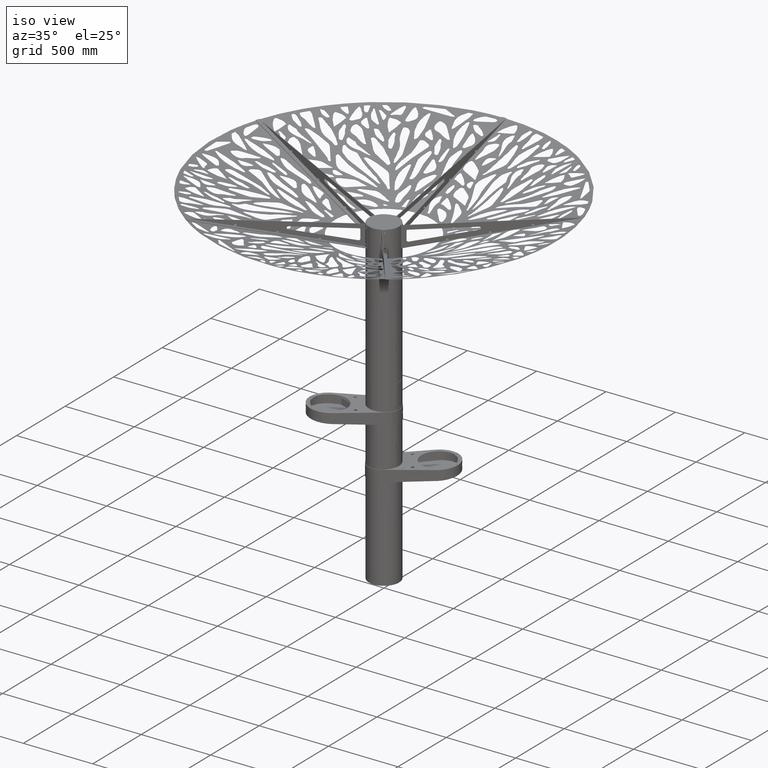
[diagram: clean part render]
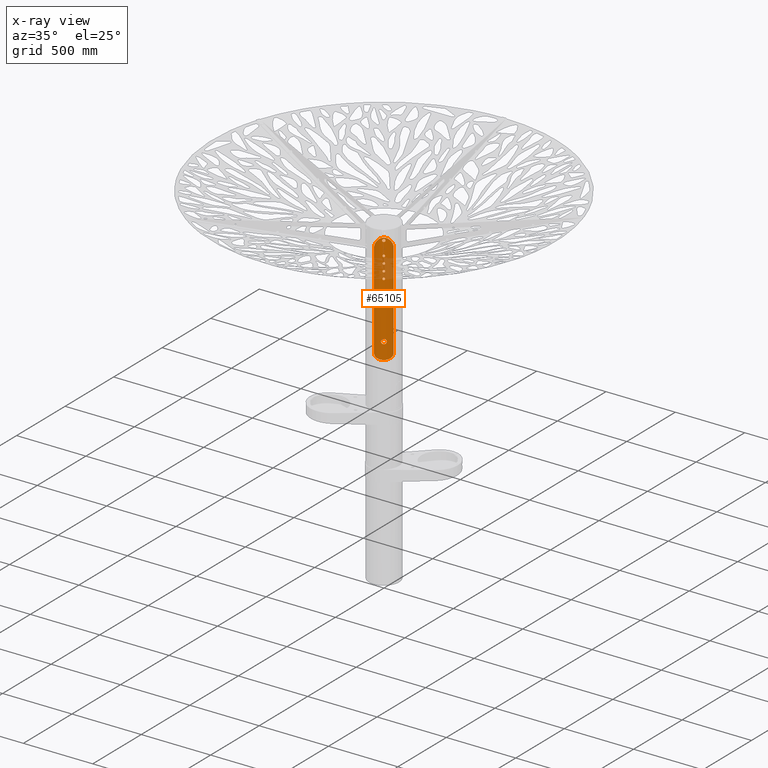
[diagram: x-ray — body ghosted, one internal face saturated and labeled with its STEP entity id]
A machine part, iso view, then the same camera in x-ray: the body is ghosted and one INTERNAL B-rep face — a face not visible from any outside direction — is saturated and labeled: STEP entity #65105.
In plain terms, the highlighted cylindrical surface (edge-blend (fillet) strip) has radius 105.65 mm, axis along (-0, -0, 1).
Its self-contained STEP definition (entity closure, byte-faithful):
#53 = ORIENTED_EDGE ( 'NONE', *, *, #77621, .T. ) ;
#114 = CARTESIAN_POINT ( 'NONE',  ( -3.547806464988044084, -105.5915258739091058, 1907.189433001998850 ) ) ;
#174 = CARTESIAN_POINT ( 'NONE',  ( -24.45204299515553714, -102.7844933988029368, 1376.518526905941826 ) ) ;
#388 = CARTESIAN_POINT ( 'NONE',  ( -9.680622182894829564, -105.2056293578211665, 2147.409023768760107 ) ) ;
#479 = CARTESIAN_POINT ( 'NONE',  ( -31.11118531697702494, -100.9681990089939916, 2159.902455061336241 ) ) ;
#594 = CARTESIAN_POINT ( 'NONE',  ( 57.86398904609772842, -88.39502967742643591, 1100.000000000000000 ) ) ;
#859 = CARTESIAN_POINT ( 'NONE',  ( -5.013406555540205645, -105.5313793140164478, 2141.341283520812794 ) ) ;
#950 = CARTESIAN_POINT ( 'NONE',  ( -44.45863675006624050, -95.84211284815580711, 2148.491270482932578 ) ) ;
#1043 = CARTESIAN_POINT ( 'NONE',  ( -5.288127948617324492, -105.5182194407637866, 1906.025594855014788 ) ) ;
#1104 = CARTESIAN_POINT ( 'NONE',  ( -32.62610604184068563, -100.5317728977809537, 1380.966048988510238 ) ) ;
#1134 = CARTESIAN_POINT ( 'NONE',  ( -7.999635380761706216, -105.3467053775634952, 2000.527434431056008 ) ) ;
#1163 = CARTESIAN_POINT ( 'NONE',  ( -15.70027785303568635, -104.4772613006231268, 1499.751018009610107 ) ) ;
#1379 = CARTESIAN_POINT ( 'NONE',  ( 7.948701790000992418, -105.3506111816342639, 1898.953435503865421 ) ) ;
#1504 = CARTESIAN_POINT ( 'NONE',  ( -8.000360755371922039, -105.3466502928129103, 1899.483685088243874 ) ) ;
#1567 = CARTESIAN_POINT ( 'NONE',  ( 14.55661338072501287, -104.6458465623840368, 1373.023622530989769 ) ) ;
#1630 = CARTESIAN_POINT ( 'NONE',  ( -0.5790622279126309557, -105.6499999999999773, 1474.500000000000000 ) ) ;
#1635 = CARTESIAN_POINT ( 'NONE',  ( -7.794428918848098853, -105.3620996229269622, 1951.821034644579413 ) ) ;
#1691 = CARTESIAN_POINT ( 'NONE',  ( 1.322536165338837444, -105.6436661639098560, 2159.933681266595158 ) ) ;
#1785 = CARTESIAN_POINT ( 'NONE',  ( -7.532147823311918344, -105.3821743219763505, 2156.609968685932472 ) ) ;
#1913 = CARTESIAN_POINT ( 'NONE',  ( 6.025799967618392650, -105.4786645056732937, 2044.712105777536635 ) ) ;
#1965 = CARTESIAN_POINT ( 'NONE',  ( -7.999635380761723980, -105.3467053775635236, 1900.527434431057372 ) ) ;
#2027 = CARTESIAN_POINT ( 'NONE',  ( 42.16190857557315042, -96.87471640987119770, 1389.005924644360221 ) ) ;
#2055 = CARTESIAN_POINT ( 'NONE',  ( -4.234178843349795329, -105.5653407474409136, 1993.207387438792011 ) ) ;
#2083 = CARTESIAN_POINT ( 'NONE',  ( -7.948497131117136405, -105.3506257633335963, 2048.953569288198651 ) ) ;
#2095 = CARTESIAN_POINT ( 'NONE',  ( -0.5286688334118360144, -105.6500000000000341, 1958.000000000000909 ) ) ;
#2152 = CARTESIAN_POINT ( 'NONE',  ( 9.871853816579836405, -105.1877992013801872, 2151.628926991542812 ) ) ;
#2212 = VERTEX_POINT ( 'NONE', #39067 ) ;
#2374 = CARTESIAN_POINT ( 'NONE',  ( 7.401470604424205568, -105.3905613897223787, 2046.930565042537410 ) ) ;
#2489 = CARTESIAN_POINT ( 'NONE',  ( 44.43603799960216350, -95.85259916057553653, 1391.482620884877178 ) ) ;
#2546 = CARTESIAN_POINT ( 'NONE',  ( -7.729905474692858824, -105.3668680978091174, 2052.077752359457008 ) ) ;
#2551 = CARTESIAN_POINT ( 'NONE',  ( -16.94032035143137094, -104.2832646891075399, 1487.462786069349022 ) ) ;
#2555 = CARTESIAN_POINT ( 'NONE',  ( -1.271014635359387745E-14, -105.6500000000000057, 1958.000000000000000 ) ) ;
#2988 = CARTESIAN_POINT ( 'NONE',  ( -5.959176464589346404E-15, -105.6500000000000057, 1992.000000000000000 ) ) ;
#3012 = CARTESIAN_POINT ( 'NONE',  ( -6.931670813300414125, -105.4224346855964995, 2054.002554617381065 ) ) ;
#3018 = CARTESIAN_POINT ( 'NONE',  ( -14.23692246390292127, -104.6868399634444415, 1481.807638820204602 ) ) ;
#3023 = CARTESIAN_POINT ( 'NONE',  ( -6.364298504091987496, -105.4585333224201520, 1945.124832138269312 ) ) ;
#3257 = CARTESIAN_POINT ( 'NONE',  ( 39.17764178542914522, -98.12712115160287851, 2153.879145056886500 ) ) ;
#3295 = CARTESIAN_POINT ( 'NONE',  ( 13.90393164619742095, -104.7330907411710399, 1481.311054408960899 ) ) ;
#3618 = ORIENTED_EDGE ( 'NONE', *, *, #90704, .T. ) ;
#3752 = CARTESIAN_POINT ( 'NONE',  ( 15.95162886515940137, -104.4390602570230300, 1499.219752816936989 ) ) ;
#3757 = CARTESIAN_POINT ( 'NONE',  ( 0.6609762512480478192, -105.6500000000000057, 2140.000000000000455 ) ) ;
#3924 = CARTESIAN_POINT ( 'NONE',  ( -7.401470635860847302, -105.3905617085848263, 2053.069434961333627 ) ) ;
#4026 = CARTESIAN_POINT ( 'NONE',  ( 6.931670813300527811, -105.4224346855965138, 1945.997445382618707 ) ) ;
#4390 = CARTESIAN_POINT ( 'NONE',  ( -18.79942878221888947, -103.9768914541345310, 2165.740163023132936 ) ) ;
#4483 = CARTESIAN_POINT ( 'NONE',  ( 7.948497131117067127, -105.3506257633336247, 1951.046430711801122 ) ) ;
#4562 = CARTESIAN_POINT ( 'NONE',  ( -5.959176464589346404E-15, -105.6500000000000057, 1992.000000000000000 ) ) ;
#4619 = CARTESIAN_POINT ( 'NONE',  ( 13.84760111434324159, -104.7943783327252731, 2167.250696356093158 ) ) ;
#4659 = CARTESIAN_POINT ( 'NONE',  ( 3.214922357067148795, -105.6015414519499132, 2140.525188589883328 ) ) ;
#4916 = VERTEX_POINT ( 'NONE', #24214 ) ;
#5111 = CARTESIAN_POINT ( 'NONE',  ( 16.60969313075736764, -104.3371346999214637, 1497.628967121940150 ) ) ;
#5481 = CARTESIAN_POINT ( 'NONE',  ( 7.948701790000994194, -105.3506111816342496, 1998.953435503864739 ) ) ;
#5583 = CARTESIAN_POINT ( 'NONE',  ( 7.945958171307369255, -105.3514057650404254, 2143.893127184374862 ) ) ;
#5947 = CARTESIAN_POINT ( 'NONE',  ( 7.744558918756554000, -105.3658140125309188, 2002.072542166492212 ) ) ;
#6278 = CARTESIAN_POINT ( 'NONE',  ( -53.89997182553975819, -90.87033015320889717, 1406.439263760405993 ) ) ;
#7167 = ORIENTED_EDGE ( 'NONE', *, *, #37474, .T. ) ;
#7224 = CARTESIAN_POINT ( 'NONE',  ( -26.76800648187628795, -102.2150883604189602, 1377.618368555612051 ) ) ;
#7443 = CARTESIAN_POINT ( 'NONE',  ( -6.840747687367402463, -105.4285541254961913, 2157.301397489048213 ) ) ;
#7506 = CARTESIAN_POINT ( 'NONE',  ( 6.364298504091816078, -105.4585333224201662, 1904.875167861731597 ) ) ;
#7627 = CARTESIAN_POINT ( 'NONE',  ( -7.794428918848098853, -105.3620996229269480, 1901.821034644579868 ) ) ;
#7687 = CARTESIAN_POINT ( 'NONE',  ( -22.07680333819386576, -103.3208676069746588, 1375.494945640573178 ) ) ;
#7753 = CARTESIAN_POINT ( 'NONE',  ( -11.97199240495896255, -104.9702737465599967, 1504.776769945335900 ) ) ;
#7814 = CARTESIAN_POINT ( 'NONE',  ( 8.974897085751015524, -105.2682184153029397, 2154.422549670725402 ) ) ;
#7823 = CARTESIAN_POINT ( 'NONE',  ( 0.5286695170878261685, -105.6500000000000199, 2008.000000000000000 ) ) ;
#7903 = CARTESIAN_POINT ( 'NONE',  ( -5.293131521802724393, -105.5176698552800758, 2141.509489985431173 ) ) ;
#7967 = CARTESIAN_POINT ( 'NONE',  ( 7.593625458996940303, -105.3769406709587884, 1902.571292575087227 ) ) ;
#8031 = CARTESIAN_POINT ( 'NONE',  ( 6.932624219655448172, -105.4223724014163963, 2054.000962284154866 ) ) ;
#8086 = CARTESIAN_POINT ( 'NONE',  ( -0.5286688334118359034, -105.6499999999999773, 1908.000000000000455 ) ) ;
#8151 = CARTESIAN_POINT ( 'NONE',  ( -42.82565543398718688, -96.58958636217545290, 1389.673579913892354 ) ) ;
#8180 = CARTESIAN_POINT ( 'NONE',  ( -1.048466399215766343, -105.6460349357790420, 2007.948111152539923 ) ) ;
#8211 = CARTESIAN_POINT ( 'NONE',  ( -2.307521189836233333, -105.6263661104715084, 1474.643159688861033 ) ) ;
#8612 = CARTESIAN_POINT ( 'NONE',  ( 53.48683462106532005, -91.11123661294780618, 1405.559953750876048 ) ) ;
#8641 = CARTESIAN_POINT ( 'NONE',  ( -6.932624219655552089, -105.4223724014163821, 1995.999037715847408 ) ) ;
#8676 = B_SPLINE_CURVE_WITH_KNOTS ( 'NONE', 3,
 ( #34500, #57555, #91895, #56615, #42967, #13854, #71175, #64134, #71645, #86241, #14795, #72100, #7753, #36373, #65067, #66915, #29773, #1163, #59408, #58938, #22310, #37287, #88088, #81492, #51888, #30693, #52823, #23675, #44360, #2551, #66000, #60330, #67376, #52347, #87182, #3018, #58491, #24142, #17096, #87622, #9141, #81027, #36837, #37750, #80565, #31155, #31620, #50962, #8211, #30237, #1630, #72561 ),
 .UNSPECIFIED., .F., .F.,
 ( 4, 2, 2, 2, 2, 2, 2, 2, 2, 2, 2, 2, 2, 2, 2, 2, 2, 2, 2, 2, 2, 2, 2, 2, 2, 4 ),
 ( 0.05479381599231961109, 0.05821842539798777194, 0.05993073010082178298, 0.06164303480365580096, 0.06506764420932384385, 0.06677994891215785489, 0.06849225361499187981, 0.07191686302065991576, 0.07362916772349394068, 0.07534147242632796559, 0.07705377712916199051, 0.07876608183199601543, 0.08219069123766341300, 0.08390299594049678567, 0.08561530064333015833, 0.08903991004899755590, 0.09075221475183123387, 0.09246451945466493960, 0.09417682415749864533, 0.09588912886033232330, 0.09931373826599973476, 0.1010260429688336070, 0.1027383476716675070, 0.1061629570773352654, 0.1078752617801692071, 0.1095875664830031487 ),
 .UNSPECIFIED. ) ;
#8830 = CARTESIAN_POINT ( 'NONE',  ( -9.662261039889337155, -105.2072828059077096, 2152.597644555673469 ) ) ;
#9017 = CARTESIAN_POINT ( 'NONE',  ( -0.5286681497367262672, -105.6500000000000341, 1892.000000000000909 ) ) ;
#9078 = CARTESIAN_POINT ( 'NONE',  ( 18.73257327226626145, -103.9889977457260102, 1374.237266455556437 ) ) ;
#9135 = CARTESIAN_POINT ( 'NONE',  ( -4.007196472418324440, -105.5748747774201490, 2056.943743474985695 ) ) ;
#9141 = CARTESIAN_POINT ( 'NONE',  ( -10.68635179360508936, -105.1124508115876779, 1478.095002730725355 ) ) ;
#9413 = CARTESIAN_POINT ( 'NONE',  ( 1.158125840272276941, -105.6500000000000341, 1474.500000000000682 ) ) ;
#9542 = CARTESIAN_POINT ( 'NONE',  ( 13.70724749751229332, -104.7605255150595127, 1372.813370097274628 ) ) ;
#9574 = CARTESIAN_POINT ( 'NONE',  ( -7.593625458996951849, -105.3769406709587741, 1997.428707424912773 ) ) ;
#9608 = CARTESIAN_POINT ( 'NONE',  ( -7.593625458996954514, -105.3769406709587884, 1947.428707424913227 ) ) ;
#9892 = CARTESIAN_POINT ( 'NONE',  ( 2.571548435034363145, -105.6189984296645008, 2042.420019816605645 ) ) ;
#10061 = CARTESIAN_POINT ( 'NONE',  ( -6.356888684537358003, -105.4589888053045001, 2054.885341413399146 ) ) ;
#10072 = CARTESIAN_POINT ( 'NONE',  ( -7.729905474692858824, -105.3668680978091601, 1952.077752359458145 ) ) ;
#10346 = CARTESIAN_POINT ( 'NONE',  ( -4.795762005399353030E-15, -105.6500000000000057, 1509.500000000000000 ) ) ;
#10349 = ORIENTED_EDGE ( 'NONE', *, *, #31863, .T. ) ;
#10531 = CARTESIAN_POINT ( 'NONE',  ( -4.234178843349799770, -105.5653407474409136, 1943.207387438792239 ) ) ;
#10625 = CARTESIAN_POINT ( 'NONE',  ( 4.007196472418448785, -105.5748747774201490, 1943.056256525014533 ) ) ;
#10686 = CARTESIAN_POINT ( 'NONE',  ( -3.227383646950101603, -105.6024313768274538, 2140.512447770802282 ) ) ;
#10768 = CARTESIAN_POINT ( 'NONE',  ( -5.959176464589346404E-15, -105.6500000000000057, 1992.000000000000000 ) ) ;
#10769 = CARTESIAN_POINT ( 'NONE',  ( 0.8772925439491209287, -105.6500000000000341, 2168.800000000000182 ) ) ;
#10970 = CARTESIAN_POINT ( 'NONE',  ( -6.025799967618414854, -105.4786645056733079, 2055.287894222464274 ) ) ;
#10981 = CARTESIAN_POINT ( 'NONE',  ( -2.082857813969207772, -105.6307103237081577, 1942.258234515482627 ) ) ;
#11175 = EDGE_LOOP ( 'NONE', ( #53, #10349 ) ) ;
#11181 = CARTESIAN_POINT ( 'NONE',  ( -5.959176464589346404E-15, -105.6500000000000057, 1942.000000000000000 ) ) ;
#11267 = CARTESIAN_POINT ( 'NONE',  ( 5.009373781435201067, -105.5325765129214943, 2141.320542399549595 ) ) ;
#11306 = FACE_OUTER_BOUND ( 'NONE', #86216, .T. ) ;
#11445 = CARTESIAN_POINT ( 'NONE',  ( -42.18836383997179951, -96.86319135832094673, 2150.966830630909953 ) ) ;
#11534 = CARTESIAN_POINT ( 'NONE',  ( 8.000360755371904276, -105.3466502928128534, 1950.516314911757490 ) ) ;
#11668 = CARTESIAN_POINT ( 'NONE',  ( 54.55188468640091060, -90.47924658385285568, 2132.009713542040572 ) ) ;
#11705 = CARTESIAN_POINT ( 'NONE',  ( 12.78889178517513514, -104.8738995075490976, 1503.959353246230194 ) ) ;
#12169 = CARTESIAN_POINT ( 'NONE',  ( 14.23692246390290705, -104.6868399634444415, 1502.192361179795626 ) ) ;
#12174 = CARTESIAN_POINT ( 'NONE',  ( 9.999536911512173276, -105.1757184989452583, 2149.340455014065355 ) ) ;
#12404 = CARTESIAN_POINT ( 'NONE',  ( -3.547824627392972108, -105.5906672055768780, 2042.824918256509818 ) ) ;
#12459 = EDGE_CURVE ( 'NONE', #12993, #23948, #61477, .T. ) ;
#12695 = CARTESIAN_POINT ( 'NONE',  ( 4.007196472418449673, -105.5748747774201348, 1893.056256525014987 ) ) ;
#12993 = VERTEX_POINT ( 'NONE', #65995 ) ;
#12996 = CARTESIAN_POINT ( 'NONE',  ( 7.948497131117126635, -105.3506257633336105, 2001.046430711800895 ) ) ;
#13093 = CARTESIAN_POINT ( 'NONE',  ( 4.435191058548721976, -105.5586023721071456, 2141.013424215473606 ) ) ;
#13153 = CARTESIAN_POINT ( 'NONE',  ( -5.959176464589346404E-15, -105.6500000000000057, 1892.000000000000682 ) ) ;
#13807 = EDGE_CURVE ( 'NONE', #59395, #55244, #79068, .T. ) ;
#13843 = CARTESIAN_POINT ( 'NONE',  ( 6.932624219655539655, -105.4223724014163963, 1954.000962284153275 ) ) ;
#13854 = CARTESIAN_POINT ( 'NONE',  ( -5.631052021592947376, -105.5012659454720421, 1508.579257407619252 ) ) ;
#14007 = CARTESIAN_POINT ( 'NONE',  ( -9.251619485456796355, -105.2443665248243008, 2153.837317906755288 ) ) ;
#14552 = CARTESIAN_POINT ( 'NONE',  ( 6.033924606122027967, -105.4782150621611265, 1905.279255838639983 ) ) ;
#14732 = CARTESIAN_POINT ( 'NONE',  ( -8.824406914075023423, -105.2946716533797087, 1371.840289115475116 ) ) ;
#14763 = CARTESIAN_POINT ( 'NONE',  ( -7.794428918848194776, -105.3620996229269622, 2001.821034644578731 ) ) ;
#14795 = CARTESIAN_POINT ( 'NONE',  ( -10.65929310739183933, -105.1118542426766425, 1505.891020352314399 ) ) ;
#14947 = CARTESIAN_POINT ( 'NONE',  ( -7.955271839328620587, -105.3506892943675552, 2143.905919067905415 ) ) ;
#15077 = CARTESIAN_POINT ( 'NONE',  ( 7.293342258569238901, -105.3980062757115803, 2053.297852631475052 ) ) ;
#15132 = CARTESIAN_POINT ( 'NONE',  ( -5.287739443232569059, -105.5182539205058703, 1893.973508488129710 ) ) ;
#15193 = CARTESIAN_POINT ( 'NONE',  ( -1.848719972191303018, -105.6375079730988631, 1371.222438363269930 ) ) ;
#15412 = CARTESIAN_POINT ( 'NONE',  ( -4.435191058548562104, -105.5586023721071740, 2158.986575784526394 ) ) ;
#15501 = CARTESIAN_POINT ( 'NONE',  ( -54.50480336544994486, -90.50579226776224573, 2132.077032107333252 ) ) ;
#15539 = CARTESIAN_POINT ( 'NONE',  ( 5.288127948617248997, -105.5182194407637866, 2043.974405144985440 ) ) ;
#15593 = CARTESIAN_POINT ( 'NONE',  ( -6.025799967618477027, -105.4786645056732652, 1905.287894222464956 ) ) ;
#15653 = CARTESIAN_POINT ( 'NONE',  ( 23.56843101295397602, -103.0400183124662021, 1376.020595829657168 ) ) ;
#15777 = CARTESIAN_POINT ( 'NONE',  ( 4.135515489472940232, -105.5694641745986786, 2159.110703856613782 ) ) ;
#15931 = CARTESIAN_POINT ( 'NONE',  ( 7.744558918756435872, -105.3658140125308762, 1902.072542166492667 ) ) ;
#15957 = CARTESIAN_POINT ( 'NONE',  ( -51.62101162215235206, -92.18524790756150367, 2138.204831595990072 ) ) ;
#16053 = CARTESIAN_POINT ( 'NONE',  ( -7.180113202781465809, -105.4058056072297660, 1896.462352170522308 ) ) ;
#16168 = CARTESIAN_POINT ( 'NONE',  ( -1.271014635359371652E-14, -105.6500000000000057, 2058.000000000000000 ) ) ;
#16179 = CARTESIAN_POINT ( 'NONE',  ( -5.287739443232563730, -105.5182539205058987, 1943.973508488129028 ) ) ;
#16420 = CARTESIAN_POINT ( 'NONE',  ( -56.32268474487252519, -89.39607736583008091, 2127.236342261635400 ) ) ;
#16456 = CARTESIAN_POINT ( 'NONE',  ( 5.631052021592894974, -105.5012659454720279, 1475.420742592380975 ) ) ;
#16516 = CARTESIAN_POINT ( 'NONE',  ( -4.234178843349797994, -105.5653407474408993, 1893.207387438792466 ) ) ;
#16581 = CARTESIAN_POINT ( 'NONE',  ( 57.24020098188317007, -88.80336559683851760, 1416.096065290339538 ) ) ;
#17076 = B_SPLINE_CURVE_WITH_KNOTS ( 'NONE', 3,
 ( #44642, #9413, #30506, #59219, #23496, #16456, #45104, #38021, #30969, #59683, #52640, #81306, #68120, #47409, #3295, #76059, #18284, #90665, #75602, #91124, #47860, #17379, #54928, #89763, #46037, #69478, #68565, #25339, #54018, #61961, #5111, #3752, #76526, #26701, #55389, #12169, #90216, #67656, #11705, #74695, #82695, #46951, #60606, #33731, #61521, #40779, #46498, #53563, #26245, #32360, #61056, #10346 ),
 .UNSPECIFIED., .F., .F.,
 ( 4, 2, 2, 2, 2, 2, 2, 2, 2, 2, 2, 2, 2, 2, 2, 2, 2, 2, 2, 2, 2, 2, 2, 2, 2, 4 ),
 ( 0.000000000000000000, 0.003424613499520424553, 0.005136920249280571560, 0.006849226999040719001, 0.01027384049856101995, 0.01198614724832117000, 0.01369845399808132004, 0.01712306749760161839, 0.01883537424736177190, 0.02054768099712192542, 0.02225998774688208240, 0.02397229449664223244, 0.02739690799616189068, 0.02910921474592138847, 0.03082152149568088279, 0.03424613499520052368, 0.03595844174496034412, 0.03767074849472017151, 0.03938305524447999195, 0.04109536199423981934, 0.04451997549375946717, 0.04623228224351946802, 0.04794458899327946888, 0.05136920249279948447, 0.05308150924255954778, 0.05479381599231961109 ),
 .UNSPECIFIED. ) ;
#17096 = CARTESIAN_POINT ( 'NONE',  ( -12.78889178517515646, -104.8738995075491260, 1480.040646753770261 ) ) ;
#17102 = CARTESIAN_POINT ( 'NONE',  ( -8.000360755371918486, -105.3466502928128676, 1949.483685088242737 ) ) ;
#17379 = CARTESIAN_POINT ( 'NONE',  ( 16.90773599280770156, -104.2884439666006386, 1487.449535549160373 ) ) ;
#17562 = CARTESIAN_POINT ( 'NONE',  ( -6.795529083692510852, -105.4313271654536521, 1954.229649286992299 ) ) ;
#17581 = EDGE_CURVE ( 'NONE', #86798, #53377, #76152, .T. ) ;
#17657 = CARTESIAN_POINT ( 'NONE',  ( 2.068914723822108392, -105.6300396786101601, 1942.267694211949447 ) ) ;
#17797 = CARTESIAN_POINT ( 'NONE',  ( 35.32056989799151125, -99.60907552806676790, 2157.129664641751788 ) ) ;
#18016 = CARTESIAN_POINT ( 'NONE',  ( -3.308095982974835980, -105.5984740579799563, 1942.711291295447381 ) ) ;
#18139 = CARTESIAN_POINT ( 'NONE',  ( -1.271014635359387745E-14, -105.6500000000000057, 1958.000000000000000 ) ) ;
#18247 = CARTESIAN_POINT ( 'NONE',  ( 21.20991747371232350, -103.5023743366323714, 2164.848183099948528 ) ) ;
#18284 = CARTESIAN_POINT ( 'NONE',  ( 15.16076894561875932, -104.5569124377665133, 1483.240542835004590 ) ) ;
#18291 = CARTESIAN_POINT ( 'NONE',  ( 2.082857813969187788, -105.6307103237081577, 2057.741765484515781 ) ) ;
#18565 = CARTESIAN_POINT ( 'NONE',  ( 0.5286688334117922716, -105.6500000000000057, 1942.000000000000227 ) ) ;
#18929 = CARTESIAN_POINT ( 'NONE',  ( -42.76751961983596573, -96.60874018643681893, 2150.361908970044624 ) ) ;
#19020 = CARTESIAN_POINT ( 'NONE',  ( 7.948701790000992418, -105.3506111816342781, 1948.953435503864739 ) ) ;
#19206 = CARTESIAN_POINT ( 'NONE',  ( 10.00022780691791269, -105.1756528093040544, 2150.319183831099508 ) ) ;
#19436 = CARTESIAN_POINT ( 'NONE',  ( -4.234178843349686971, -105.5653407474409420, 2043.207387438791557 ) ) ;
#19587 = B_SPLINE_CURVE_WITH_KNOTS ( 'NONE', 3,
 ( #30205, #72530, #8180, #36341, #65034, #58906, #23643, #36805, #23185, #86681, #59834, #44328, #45255, #22731, #57988, #87151, #65509, #51857, #30657, #14763, #73914, #1134, #29739, #65966, #51389, #9574, #72993, #52315, #8641, #59369, #37259, #37715, #66421, #38181, #2055, #66883, #88057, #88526, #24112, #79138, #61668, #76213, #2988 ),
 .UNSPECIFIED., .F., .F.,
 ( 4, 2, 2, 2, 2, 2, 2, 2, 1, 2, 2, 2, 2, 2, 2, 2, 2, 2, 2, 2, 2, 4 ),
 ( 0.000000000000000000, 0.001563452093853602521, 0.002345178140780403674, 0.003126904187707205043, 0.004690356281560803878, 0.006253808375414404014, 0.007817260469268004150, 0.008598986516194805085, 0.009380712563121606021, 0.01016243861004840869, 0.01094416465697520789, 0.01250761675082880803, 0.01407106884468240990, 0.01563452093853601524, 0.01641624698546250566, 0.01719797303238899955, 0.01876142512624199080, 0.02032487722009498204, 0.02110660326702147940, 0.02188832931394797329, 0.02345178140780071127, 0.02501523350165344578 ),
 .UNSPECIFIED. ) ;
#19676 = CARTESIAN_POINT ( 'NONE',  ( 8.102192669408042734E-14, -105.6500000000000057, 2140.000000000000000 ) ) ;
#20135 = CARTESIAN_POINT ( 'NONE',  ( 2.586564741178177140, -105.6188002470657068, 2140.334729188536585 ) ) ;
#20190 = CARTESIAN_POINT ( 'NONE',  ( 0.5286688334117924937, -105.6500000000000057, 1892.000000000001137 ) ) ;
#20884 = CARTESIAN_POINT ( 'NONE',  ( 6.033924606122028855, -105.4782150621611407, 1955.279255838639301 ) ) ;
#20967 = CARTESIAN_POINT ( 'NONE',  ( -4.795762005399353030E-15, -105.6500000000000057, 1509.500000000000000 ) ) ;
#21154 = CARTESIAN_POINT ( 'NONE',  ( -13.78227513823612860, -104.7506728992067053, 2167.168581073524820 ) ) ;
#21623 = CARTESIAN_POINT ( 'NONE',  ( -26.70403477707781903, -102.2654328185148245, 2162.497127281533267 ) ) ;
#21715 = CARTESIAN_POINT ( 'NONE',  ( -1.271014635359371652E-14, -105.6500000000000057, 1908.000000000000909 ) ) ;
#21918 = CARTESIAN_POINT ( 'NONE',  ( 6.798295501041285327, -105.4311466776864137, 2004.225052373975359 ) ) ;
#22065 = CARTESIAN_POINT ( 'NONE',  ( 6.932624219655537878, -105.4223724014163110, 1904.000962284153957 ) ) ;
#22185 = CARTESIAN_POINT ( 'NONE',  ( -2.821320519678875094, -105.6126003008097172, 1907.490585419448053 ) ) ;
#22243 = CARTESIAN_POINT ( 'NONE',  ( -57.24025108925916072, -88.80333279620859344, 1416.096342750833173 ) ) ;
#22310 = CARTESIAN_POINT ( 'NONE',  ( -16.57388720712347663, -104.3420209897375486, 1497.646638466060267 ) ) ;
#22463 = CARTESIAN_POINT ( 'NONE',  ( -4.435141157415276147, -105.5572630761321165, 2141.031324553097420 ) ) ;
#22589 = CARTESIAN_POINT ( 'NONE',  ( 2.821320519678719663, -105.6126003008097172, 2042.509414580550583 ) ) ;
#22731 = CARTESIAN_POINT ( 'NONE',  ( -6.795529083692512629, -105.4313271654536379, 2004.229649286992299 ) ) ;
#22916 = CARTESIAN_POINT ( 'NONE',  ( 7.667003445437424786E-14, -105.6500000000000057, 2159.999999999999545 ) ) ;
#23091 = CARTESIAN_POINT ( 'NONE',  ( -6.798295501041310196, -105.4311466776863995, 1895.774947626026233 ) ) ;
#23185 = CARTESIAN_POINT ( 'NONE',  ( -4.007196472418325328, -105.5748747774201775, 2006.943743474986150 ) ) ;
#23226 = CARTESIAN_POINT ( 'NONE',  ( -0.5286681497367243798, -105.6500000000000057, 1941.999999999999773 ) ) ;
#23496 = CARTESIAN_POINT ( 'NONE',  ( 4.530758713534113191, -105.5542423990947043, 1475.086906003403556 ) ) ;
#23503 = CARTESIAN_POINT ( 'NONE',  ( 6.356888684537317147, -105.4589888053044575, 2045.114658586601081 ) ) ;
#23614 = CARTESIAN_POINT ( 'NONE',  ( 53.83479218910341046, -90.90592746438846916, 1406.335984759616167 ) ) ;
#23643 = CARTESIAN_POINT ( 'NONE',  ( -2.821320519678737870, -105.6126003008097598, 2007.490585419448280 ) ) ;
#23675 = CARTESIAN_POINT ( 'NONE',  ( -17.36023887542441813, -104.2139523777642722, 1489.718334557025628 ) ) ;
#23736 = CARTESIAN_POINT ( 'NONE',  ( 7.542332011686500692, -105.3814701356865982, 2156.599159479764694 ) ) ;
#23948 = VERTEX_POINT ( 'NONE', #82696 ) ;
#23967 = CARTESIAN_POINT ( 'NONE',  ( 7.948497131117112424, -105.3506257633336105, 2051.046430711799985 ) ) ;
#24082 = CARTESIAN_POINT ( 'NONE',  ( 54.81731243013634014, -90.31671476655299102, 1408.710391597790704 ) ) ;
#24112 = CARTESIAN_POINT ( 'NONE',  ( -2.581420951444411305, -105.6195704190145648, 1992.409785225631595 ) ) ;
#24142 = CARTESIAN_POINT ( 'NONE',  ( -13.17456264207973504, -104.8259817016602256, 1480.467148583025164 ) ) ;
#24155 = VECTOR ( 'NONE', #50392, 1000.000000000000000 ) ;
#24214 = CARTESIAN_POINT ( 'NONE',  ( -57.86398904609787053, -88.39502967742625117, 1419.550178390371002 ) ) ;
#24301 = CARTESIAN_POINT ( 'NONE',  ( -0.6609751504375038778, -105.6500000000000199, 2140.000000000000455 ) ) ;
#24426 = CARTESIAN_POINT ( 'NONE',  ( 7.948701790001070577, -105.3506111816342923, 2048.953435503865876 ) ) ;
#24595 = CARTESIAN_POINT ( 'NONE',  ( -7.293342258569252223, -105.3980062757115945, 2046.702147368525630 ) ) ;
#24840 = CARTESIAN_POINT ( 'NONE',  ( 1.757278456876005146, -105.6390750782387471, 2168.780377427281110 ) ) ;
#25062 = CARTESIAN_POINT ( 'NONE',  ( -6.798295501041310196, -105.4311466776863995, 1945.774947626025323 ) ) ;
#25157 = CARTESIAN_POINT ( 'NONE',  ( 4.876617437677021272, -105.5382888349202801, 1943.636683303377822 ) ) ;
#25299 = CARTESIAN_POINT ( 'NONE',  ( 4.402135196852744237, -105.5618639150504379, 2168.641528698494312 ) ) ;
#25339 = CARTESIAN_POINT ( 'NONE',  ( 17.36023887542440391, -104.2139523777642722, 1494.281665442974372 ) ) ;
#25385 = FACE_BOUND ( 'NONE', #90346, .T. ) ;
#25444 = CARTESIAN_POINT ( 'NONE',  ( -1.271014635359371652E-14, -105.6500000000000057, 2058.000000000000000 ) ) ;
#25755 = CARTESIAN_POINT ( 'NONE',  ( 42.80033448938592500, -96.60083896102094059, 2150.353376404230403 ) ) ;
#26143 = CARTESIAN_POINT ( 'NONE',  ( 2.571548435034422209, -105.6189984296645434, 1992.420019816606782 ) ) ;
#26206 = CARTESIAN_POINT ( 'NONE',  ( 22.01458523319822902, -103.3341535811265857, 2164.530233253164624 ) ) ;
#26245 = CARTESIAN_POINT ( 'NONE',  ( 2.307521189836215569, -105.6263661104715084, 1509.356840311139422 ) ) ;
#26250 = CARTESIAN_POINT ( 'NONE',  ( 8.664397917474710553, -105.2942290123429387, 2144.996480501736187 ) ) ;
#26470 = CARTESIAN_POINT ( 'NONE',  ( -4.883554496725607486, -105.5379606865728164, 2043.642145093339650 ) ) ;
#26523 = CARTESIAN_POINT ( 'NONE',  ( 7.729905474692844614, -105.3668680978091601, 1947.922247640542082 ) ) ;
#26660 = CARTESIAN_POINT ( 'NONE',  ( 47.15466048578776537, -94.57275263846472058, 2145.285044765693783 ) ) ;
#26701 = CARTESIAN_POINT ( 'NONE',  ( 15.16288652965084260, -104.5566070670459311, 1500.755903739328005 ) ) ;
#26760 = CARTESIAN_POINT ( 'NONE',  ( 6.356888684537331358, -105.4589888053045001, 1895.114658586602673 ) ) ;
#26937 = CARTESIAN_POINT ( 'NONE',  ( -57.86398904609769289, -88.39502967742637907, 1100.000000000000000 ) ) ;
#26984 = CARTESIAN_POINT ( 'NONE',  ( 7.293342258569340153, -105.3980062757116087, 1953.297852631474825 ) ) ;
#27066 = CARTESIAN_POINT ( 'NONE',  ( 5.288127948617308505, -105.5182194407637866, 1993.974405144985212 ) ) ;
#27526 = CARTESIAN_POINT ( 'NONE',  ( 7.180113202781374326, -105.4058056072297660, 2003.537647829479056 ) ) ;
#27618 = CARTESIAN_POINT ( 'NONE',  ( 9.491916976365411429, -105.2230447510913507, 2153.214475149032296 ) ) ;
#27904 = CARTESIAN_POINT ( 'NONE',  ( 6.798295501041161870, -105.4311466776864137, 1954.225052373975359 ) ) ;
#28135 = CARTESIAN_POINT ( 'NONE',  ( 4.010391271490909126, -105.5741105686198154, 1906.927165326600971 ) ) ;
#28542 = CARTESIAN_POINT ( 'NONE',  ( -9.935835105130495393, -105.1818347439809713, 2151.308541773825709 ) ) ;
#28638 = CARTESIAN_POINT ( 'NONE',  ( -11.23212250833265635, -105.0547429027142385, 2167.723763423462060 ) ) ;
#28999 = CARTESIAN_POINT ( 'NONE',  ( -9.491916976365249781, -105.2230447510913507, 2146.785524850968613 ) ) ;
#29091 = CARTESIAN_POINT ( 'NONE',  ( -32.53904694288765143, -100.5171303161588128, 2158.983377762508098 ) ) ;
#29188 = CARTESIAN_POINT ( 'NONE',  ( -2.082857813969209104, -105.6307103237081719, 1892.258234515483764 ) ) ;
#29389 = CARTESIAN_POINT ( 'NONE',  ( 6.932624219655444620, -105.4223724014163537, 2004.000962284154184 ) ) ;
#29468 = CARTESIAN_POINT ( 'NONE',  ( -8.497702621697763803, -105.3078555776452561, 2144.718419435025226 ) ) ;
#29648 = CARTESIAN_POINT ( 'NONE',  ( -7.729905474692856160, -105.3668680978091459, 1902.077752359458600 ) ) ;
#29658 = VERTEX_POINT ( 'NONE', #54036 ) ;
#29710 = CARTESIAN_POINT ( 'NONE',  ( -28.26539922158593399, -101.8100393929816647, 1378.411774660713263 ) ) ;
#29739 = CARTESIAN_POINT ( 'NONE',  ( -8.000360755371932697, -105.3466502928128534, 1999.483685088242510 ) ) ;
#29773 = CARTESIAN_POINT ( 'NONE',  ( -15.16076894561876642, -104.5569124377664707, 1500.759457164995410 ) ) ;
#29847 = CARTESIAN_POINT ( 'NONE',  ( 1.057768324038722341, -105.6459482722220997, 2007.946971477433181 ) ) ;
#29927 = CARTESIAN_POINT ( 'NONE',  ( -6.089252674373022423, -105.4746820236814386, 2157.939109691769772 ) ) ;
#29988 = CARTESIAN_POINT ( 'NONE',  ( 7.729905474692845502, -105.3668680978091601, 1897.922247640542537 ) ) ;
#30108 = CARTESIAN_POINT ( 'NONE',  ( -7.593625458996955402, -105.3769406709587741, 1897.428707424914364 ) ) ;
#30205 = CARTESIAN_POINT ( 'NONE',  ( -1.271014635359371652E-14, -105.6500000000000057, 2008.000000000000000 ) ) ;
#30237 = CARTESIAN_POINT ( 'NONE',  ( -1.156377945518173744, -105.6452396551402586, 1474.528670638012500 ) ) ;
#30242 = CARTESIAN_POINT ( 'NONE',  ( -6.931670813300543799, -105.4224346855965280, 1954.002554617381293 ) ) ;
#30389 = CARTESIAN_POINT ( 'NONE',  ( -7.945958171307211160, -105.3514057650404396, 2156.106872815625138 ) ) ;
#30506 = CARTESIAN_POINT ( 'NONE',  ( 2.296506492902105734, -105.6309763124964576, 1474.613827588638287 ) ) ;
#30565 = CARTESIAN_POINT ( 'NONE',  ( -3.308095982974835980, -105.5984740579799563, 1892.711291295447609 ) ) ;
#30628 = CARTESIAN_POINT ( 'NONE',  ( 32.49533775574337113, -100.5312788888414843, 1380.987595863688284 ) ) ;
#30657 = CARTESIAN_POINT ( 'NONE',  ( -7.729905474692861489, -105.3668680978091601, 2002.077752359458600 ) ) ;
#30687 = CARTESIAN_POINT ( 'NONE',  ( -7.593625458996877242, -105.3769406709587741, 2047.428707424913227 ) ) ;
#30693 = CARTESIAN_POINT ( 'NONE',  ( -17.50043513517578120, -104.1904855074534595, 1491.441829523503202 ) ) ;
#30701 = CARTESIAN_POINT ( 'NONE',  ( -3.547806464988042308, -105.5915258739090774, 1957.189433001997486 ) ) ;
#30758 = CARTESIAN_POINT ( 'NONE',  ( 8.665587168266318585, -105.2941317693484820, 2155.001531997200800 ) ) ;
#30969 = CARTESIAN_POINT ( 'NONE',  ( 8.770264107210133275, -105.2896754784394062, 1476.813212419312094 ) ) ;
#30976 = CARTESIAN_POINT ( 'NONE',  ( 7.794428918848179677, -105.3620996229269480, 2048.178965355420132 ) ) ;
#31063 = B_SPLINE_CURVE_WITH_KNOTS ( 'NONE', 3,
 ( #19676, #3757, #84534, #46956, #20135, #4659, #77468, #13093, #11267, #61966, #48334, #76996, #54933, #68125, #5583, #90670, #26250, #61062, #39876, #61527, #83610, #90221, #76532, #12174, #19206, #40785, #59464, #2152, #80160, #27618, #58081, #7814, #30758, #92060, #44887, #23736, #56320, #87685, #51487, #41718, #80627, #15777, #65605, #85010, #1691, #66061, #63349 ),
 .UNSPECIFIED., .F., .F.,
 ( 4, 2, 2, 2, 2, 2, 2, 2, 2, 1, 2, 2, 2, 2, 2, 2, 2, 2, 2, 2, 2, 2, 2, 4 ),
 ( 0.03127519007956595931, 0.03322989271496258612, 0.03420724403266076769, 0.03518459535035894925, 0.03713929798575531932, 0.03811664930345350089, 0.03909400062115168939, 0.04104870325654805946, 0.04202605457424569979, 0.04300340589194333318, 0.04398075720964097352, 0.04495810852733861385, 0.04691281116273388757, 0.04789016248043152790, 0.04886751379812916130, 0.05082221643352443502, 0.05179956775122146473, 0.05277691906891849444, 0.05473162170431254692, 0.05668632433970660633, 0.05766367565740364298, 0.05864102697510067269, 0.06059572961049524559, 0.06255043224588981154 ),
 .UNSPECIFIED. ) ;
#31091 = CARTESIAN_POINT ( 'NONE',  ( 12.00669182613270536, -104.9690225330395776, 1372.432312666031066 ) ) ;
#31149 = CARTESIAN_POINT ( 'NONE',  ( -7.180113202781392090, -105.4058056072297802, 2046.462352170522081 ) ) ;
#31155 = CARTESIAN_POINT ( 'NONE',  ( -5.654115393228465791, -105.5039223270533313, 1475.398984611737433 ) ) ;
#31160 = CARTESIAN_POINT ( 'NONE',  ( -7.293342258569350811, -105.3980062757115803, 1946.702147368525402 ) ) ;
#31445 = CARTESIAN_POINT ( 'NONE',  ( 7.729905474692845502, -105.3668680978091601, 2047.922247640541627 ) ) ;
#31614 = CARTESIAN_POINT ( 'NONE',  ( -6.364298504091976838, -105.4585333224201520, 2045.124832138268857 ) ) ;
#31620 = CARTESIAN_POINT ( 'NONE',  ( -4.563599501066603281, -105.5573708858905206, 1475.066736362011170 ) ) ;
#31788 = LINE ( 'NONE', #26937, #74131 ) ;
#31856 = CARTESIAN_POINT ( 'NONE',  ( 56.32419715759439072, -89.39477644377527099, 2127.222289822110724 ) ) ;
#31863 = EDGE_CURVE ( 'NONE', #29658, #82333, #31063, .T. ) ;
#31899 = B_SPLINE_CURVE_WITH_KNOTS ( 'NONE', 3,
 ( #4562, #33169, #62782, #69379, #92433, #26143, #70311, #47759, #76421, #62322, #27066, #34096, #91023, #55287, #48230, #76894, #41152, #41620, #69846, #55756, #5481, #84431, #77370, #12996, #5947, #34568, #63251, #27526, #29389, #21918, #86789, #87256, #51036, #66074, #58093, #64204, #65616, #64680, #50094, #43508, #29847, #7823, #73098 ),
 .UNSPECIFIED., .F., .F.,
 ( 4, 2, 2, 2, 2, 2, 2, 2, 1, 2, 2, 2, 2, 2, 2, 2, 2, 2, 2, 2, 2, 4 ),
 ( 0.02501523350165344578, 0.02657868761736774388, 0.02736041467522483048, 0.02814214173308191361, 0.02970559584879633661, 0.03126904996451075613, 0.03283250408022517913, 0.03361423113808210961, 0.03439595819593904702, 0.03517768525379598443, 0.03595941231165292185, 0.03752286642736679667, 0.03908632054308066456, 0.04064977465879453938, 0.04143150171665146986, 0.04221322877450840727, 0.04377668289022228210, 0.04534013700593615692, 0.04612186406379309433, 0.04690359112165003175, 0.04846704523736339310, 0.05003049935307676138 ),
 .UNSPECIFIED. ) ;
#31943 = FACE_BOUND ( 'NONE', #63351, .T. ) ;
#32071 = CARTESIAN_POINT ( 'NONE',  ( -1.815408712903212818, -105.6347109669243594, 2057.795654518766241 ) ) ;
#32360 = CARTESIAN_POINT ( 'NONE',  ( 1.156377945518157535, -105.6452396551402870, 1509.471329361987500 ) ) ;
#32531 = CARTESIAN_POINT ( 'NONE',  ( -7.577579710323043116, -105.3779323061640980, 2052.578522687241275 ) ) ;
#32637 = CARTESIAN_POINT ( 'NONE',  ( 7.401470635860515124, -105.3905617085848405, 1946.930565038666373 ) ) ;
#32775 = CARTESIAN_POINT ( 'NONE',  ( 57.23956162183533536, -88.80378412628458307, 2123.907475049791174 ) ) ;
#32863 = B_SPLINE_CURVE_WITH_KNOTS ( 'NONE', 3,
 ( #37571, #74238, #59226, #36656, #60157, #9892, #22589, #66279, #87911, #44184, #15539, #1913, #23503, #52169, #38029, #66740, #2374, #51243, #31445, #30976, #24426, #59690, #88373, #23967, #52647, #79459, #15077, #72378, #8031, #39878, #53107, #89316, #81785, #75608, #39420, #68573, #69487, #68127, #38968, #18291, #53570, #54025, #40331 ),
 .UNSPECIFIED., .F., .F.,
 ( 4, 2, 2, 2, 2, 2, 2, 2, 1, 2, 2, 2, 2, 2, 2, 2, 2, 2, 2, 2, 2, 4 ),
 ( 0.02501523350165344925, 0.02657868761736747326, 0.02736041467522448353, 0.02814214173308149380, 0.02970559584879551435, 0.03126904996450953489, 0.03283250408022355543, 0.03361423113808056917, 0.03439595819593757597, 0.03517768525379458278, 0.03595941231165159652, 0.03752286642736561706, 0.03908632054307963760, 0.04064977465879365814, 0.04143150171665066495, 0.04221322877450767175, 0.04377668289022169923, 0.04534013700593571283, 0.04612186406379272657, 0.04690359112164974031, 0.04846704523736325432, 0.05003049935307676138 ),
 .UNSPECIFIED. ) ;
#33169 = CARTESIAN_POINT ( 'NONE',  ( 0.5286688334117941590, -105.6499999999999915, 1992.000000000000000 ) ) ;
#33310 = FACE_BOUND ( 'NONE', #74552, .T. ) ;
#33552 = CARTESIAN_POINT ( 'NONE',  ( 1.048466399215770117, -105.6460349357790705, 1942.051888847459395 ) ) ;
#33694 = CARTESIAN_POINT ( 'NONE',  ( 52.80665785749076235, -91.50713259012024992, 2135.876964642377970 ) ) ;
#33731 = CARTESIAN_POINT ( 'NONE',  ( 7.765014401382793530, -105.3654828576613056, 1507.693458390688647 ) ) ;
#33793 = CARTESIAN_POINT ( 'NONE',  ( 2.068914723822108392, -105.6300396786101601, 1892.267694211950356 ) ) ;
#34096 = CARTESIAN_POINT ( 'NONE',  ( 6.025799967618460151, -105.4786645056732652, 1994.712105777536181 ) ) ;
#34252 = CARTESIAN_POINT ( 'NONE',  ( 2.571548435034420876, -105.6189984296645008, 1892.420019816606782 ) ) ;
#34404 = ORIENTED_EDGE ( 'NONE', *, *, #44626, .F. ) ;
#34487 = CARTESIAN_POINT ( 'NONE',  ( 2.581420951444396206, -105.6195704190146074, 1957.590214774369088 ) ) ;
#34500 = CARTESIAN_POINT ( 'NONE',  ( -4.795762005399353030E-15, -105.6500000000000057, 1509.500000000000000 ) ) ;
#34568 = CARTESIAN_POINT ( 'NONE',  ( 7.593625458996863919, -105.3769406709587741, 2002.571292575087000 ) ) ;
#34907 = CARTESIAN_POINT ( 'NONE',  ( -54.55674656581617654, -90.47630670434196531, 1408.002483924169837 ) ) ;
#35374 = CARTESIAN_POINT ( 'NONE',  ( -3.308095982974861293, -105.5984740579799279, 2042.711291295447154 ) ) ;
#35377 = CARTESIAN_POINT ( 'NONE',  ( -43.95356483242715484, -96.08024334996277105, 1390.906432457416031 ) ) ;
#35842 = CARTESIAN_POINT ( 'NONE',  ( -23.66839013678349346, -102.9679281962314832, 1376.166984993497408 ) ) ;
#36069 = CARTESIAN_POINT ( 'NONE',  ( -9.871853816579678309, -105.1877992013802157, 2148.371073008457188 ) ) ;
#36133 = CARTESIAN_POINT ( 'NONE',  ( 4.234178843349782007, -105.5653407474409136, 1906.792612561208898 ) ) ;
#36341 = CARTESIAN_POINT ( 'NONE',  ( -1.815408712903212818, -105.6347109669243451, 2007.795654518766924 ) ) ;
#36373 = CARTESIAN_POINT ( 'NONE',  ( -13.18027424829370986, -104.8277671279338819, 1503.568413039889720 ) ) ;
#36532 = CARTESIAN_POINT ( 'NONE',  ( -9.920307084879020465, -105.1832260764749662, 2148.697640435285393 ) ) ;
#36545 = ORIENTED_EDGE ( 'NONE', *, *, #57807, .T. ) ;
#36592 = CARTESIAN_POINT ( 'NONE',  ( 2.082857813969188676, -105.6307103237081435, 1907.741765484517373 ) ) ;
#36656 = CARTESIAN_POINT ( 'NONE',  ( 1.815408712903197719, -105.6347109669243594, 2042.204345481233304 ) ) ;
#36805 = CARTESIAN_POINT ( 'NONE',  ( -3.547806464987902419, -105.5915258739091342, 2007.189433001999078 ) ) ;
#36837 = CARTESIAN_POINT ( 'NONE',  ( -8.777626022474663614, -105.2859615898120467, 1476.849641379705645 ) ) ;
#36988 = CARTESIAN_POINT ( 'NONE',  ( -5.824376955995378857, -105.4896826275390538, 2158.135314103002202 ) ) ;
#37001 = ORIENTED_EDGE ( 'NONE', *, *, #17581, .T. ) ;
#37050 = CARTESIAN_POINT ( 'NONE',  ( 7.999635380761707992, -105.3467053775635094, 1899.472565568944674 ) ) ;
#37167 = CARTESIAN_POINT ( 'NONE',  ( -7.948701790001006628, -105.3506111816342496, 1901.046564496135488 ) ) ;
#37259 = CARTESIAN_POINT ( 'NONE',  ( -6.364298504091829400, -105.4585333224201378, 1995.124832138269767 ) ) ;
#37287 = CARTESIAN_POINT ( 'NONE',  ( -16.90773599280770512, -104.2884439666005960, 1496.550464450839399 ) ) ;
#37449 = CARTESIAN_POINT ( 'NONE',  ( -9.999536911512009851, -105.1757184989452867, 2150.659544985935099 ) ) ;
#37474 = EDGE_CURVE ( 'NONE', #71443, #87540, #19587, .T. ) ;
#37571 = CARTESIAN_POINT ( 'NONE',  ( -5.959176464589346404E-15, -105.6500000000000057, 2041.999999999999773 ) ) ;
#37626 = CARTESIAN_POINT ( 'NONE',  ( -7.948497131117083114, -105.3506257633336389, 1898.953569288200242 ) ) ;
#37686 = CARTESIAN_POINT ( 'NONE',  ( 52.39766157223990461, -91.74482667403123060, 1403.264360573889007 ) ) ;
#37715 = CARTESIAN_POINT ( 'NONE',  ( -6.033924606122042178, -105.4782150621610981, 1994.720744161361154 ) ) ;
#37744 = CARTESIAN_POINT ( 'NONE',  ( -7.999635380761709769, -105.3467053775635236, 2050.527434431056463 ) ) ;
#37750 = CARTESIAN_POINT ( 'NONE',  ( -7.765014401382810405, -105.3654828576613340, 1476.306541609312035 ) ) ;
#37755 = CARTESIAN_POINT ( 'NONE',  ( -6.932624219655552089, -105.4223724014163679, 1945.999037715846953 ) ) ;
#38021 = CARTESIAN_POINT ( 'NONE',  ( 7.765988751493565267, -105.3695309239477638, 1476.275683931402227 ) ) ;
#38029 = CARTESIAN_POINT ( 'NONE',  ( 6.931670813300653933, -105.4224346855965280, 2045.997445382619162 ) ) ;
#38149 = CARTESIAN_POINT ( 'NONE',  ( 42.74205967071300449, -96.62001337764542086, 1389.611112577685617 ) ) ;
#38181 = CARTESIAN_POINT ( 'NONE',  ( -4.883554496725705185, -105.5379606865728306, 1993.642145093341469 ) ) ;
#38217 = CARTESIAN_POINT ( 'NONE',  ( -7.401470604423957766, -105.3905613897224072, 1953.069434957462818 ) ) ;
#38672 = CARTESIAN_POINT ( 'NONE',  ( -7.744558918756567323, -105.3658140125308904, 2047.927457833508015 ) ) ;
#38922 = CARTESIAN_POINT ( 'NONE',  ( 51.22109894015322595, -92.40432280917127628, 2138.888719460480388 ) ) ;
#38968 = CARTESIAN_POINT ( 'NONE',  ( 2.581420951444420187, -105.6195704190145506, 2057.590214774367723 ) ) ;
#39067 = CARTESIAN_POINT ( 'NONE',  ( -5.959176464589346404E-15, -105.6500000000000057, 2041.999999999999773 ) ) ;
#39143 = CARTESIAN_POINT ( 'NONE',  ( -7.948701790001006628, -105.3506111816342781, 1951.046564496134806 ) ) ;
#39235 = CARTESIAN_POINT ( 'NONE',  ( 2.571548435034421320, -105.6189984296645008, 1942.420019816606100 ) ) ;
#39420 = CARTESIAN_POINT ( 'NONE',  ( 4.234178843349670984, -105.5653407474408851, 2056.792612561207079 ) ) ;
#39591 = CARTESIAN_POINT ( 'NONE',  ( -1.057768324038758978, -105.6459482722220855, 1942.053028522567047 ) ) ;
#39691 = CARTESIAN_POINT ( 'NONE',  ( 7.178467061106194258, -105.4059173194533940, 1946.459080009136414 ) ) ;
#39876 = CARTESIAN_POINT ( 'NONE',  ( 9.251619485456958003, -105.2443665248243150, 2146.162682093243802 ) ) ;
#39878 = CARTESIAN_POINT ( 'NONE',  ( 6.798295501041287991, -105.4311466776864279, 2054.225052373974904 ) ) ;
#40148 = CARTESIAN_POINT ( 'NONE',  ( -5.959176464589346404E-15, -105.6500000000000057, 1942.000000000000000 ) ) ;
#40288 = CARTESIAN_POINT ( 'NONE',  ( 17.16562498183489538, -104.2983091903979158, 2166.344315921825910 ) ) ;
#40331 = CARTESIAN_POINT ( 'NONE',  ( -1.271014635359371652E-14, -105.6500000000000057, 2058.000000000000000 ) ) ;
#40387 = CARTESIAN_POINT ( 'NONE',  ( 2.821320519678855998, -105.6126003008097598, 1892.509414580553312 ) ) ;
#40730 = VERTEX_POINT ( 'NONE', #25444 ) ;
#40779 = CARTESIAN_POINT ( 'NONE',  ( 5.654115393228445363, -105.5039223270533171, 1508.601015388263022 ) ) ;
#40785 = CARTESIAN_POINT ( 'NONE',  ( 9.984534171007059200, -105.1771487439221886, 2150.646305254580966 ) ) ;
#41152 = CARTESIAN_POINT ( 'NONE',  ( 7.401470635860515124, -105.3905617085848689, 1996.930565038666373 ) ) ;
#41316 = CARTESIAN_POINT ( 'NONE',  ( 7.401470635860515124, -105.3905617085848263, 1896.930565038667282 ) ) ;
#41620 = CARTESIAN_POINT ( 'NONE',  ( 7.577579710323028905, -105.3779323061640838, 1997.421477312758270 ) ) ;
#41718 = CARTESIAN_POINT ( 'NONE',  ( 5.013406555540365517, -105.5313793140164194, 2158.658716479186751 ) ) ;
#41804 = CARTESIAN_POINT ( 'NONE',  ( -3.501420809169065951, -105.6499999999999915, 2168.800000000000182 ) ) ;
#42233 = DIRECTION ( 'NONE',  ( 1.000000000000000000, 0.000000000000000000, 0.000000000000000000 ) ) ;
#42429 = CARTESIAN_POINT ( 'NONE',  ( -2.581420951444434397, -105.6195704190145506, 2042.409785225630912 ) ) ;
#42479 = CARTESIAN_POINT ( 'NONE',  ( 6.364298504091814301, -105.4585333224201662, 1954.875167861730688 ) ) ;
#42699 = DIRECTION ( 'NONE',  ( 0.000000000000000000, 0.000000000000000000, 1.000000000000000000 ) ) ;
#42713 = CARTESIAN_POINT ( 'NONE',  ( 3.308095982974815996, -105.5984740579799848, 1907.288708704553528 ) ) ;
#42761 = EDGE_LOOP ( 'NONE', ( #36545, #84884 ) ) ;
#42901 = CARTESIAN_POINT ( 'NONE',  ( -35.35894816997674894, -99.59534084495649608, 1382.899371505901399 ) ) ;
#42955 = CARTESIAN_POINT ( 'NONE',  ( 5.287739443232549519, -105.5182539205058987, 1956.026491511870518 ) ) ;
#42967 = CARTESIAN_POINT ( 'NONE',  ( -4.530758713534166482, -105.5542423990946759, 1508.913093996596672 ) ) ;
#43117 = CARTESIAN_POINT ( 'NONE',  ( -9.742948747307677237, -105.1998175832256663, 2152.276669697140733 ) ) ;
#43184 = CARTESIAN_POINT ( 'NONE',  ( 5.287739443232550407, -105.5182539205059129, 1906.026491511871427 ) ) ;
#43370 = CARTESIAN_POINT ( 'NONE',  ( -7.104093437172268821, -105.4253238462756315, 1371.604503370954490 ) ) ;
#43508 = CARTESIAN_POINT ( 'NONE',  ( 2.082857813969162475, -105.6307103237081719, 2007.741765484516918 ) ) ;
#43593 = CARTESIAN_POINT ( 'NONE',  ( -7.542332011686347037, -105.3814701356866124, 2143.400840520234851 ) ) ;
#43656 = CARTESIAN_POINT ( 'NONE',  ( 4.883554496725695415, -105.5379606865728590, 1906.357854906660123 ) ) ;
#43775 = CARTESIAN_POINT ( 'NONE',  ( -2.581420951444419298, -105.6195704190145648, 1892.409785225632277 ) ) ;
#44054 = CARTESIAN_POINT ( 'NONE',  ( -5.009373781435042972, -105.5325765129214943, 2158.679457600451315 ) ) ;
#44184 = CARTESIAN_POINT ( 'NONE',  ( 4.876617437676872946, -105.5382888349202517, 2043.636683303377140 ) ) ;
#44237 = CARTESIAN_POINT ( 'NONE',  ( -6.795529083692510852, -105.4313271654536521, 1904.229649286993208 ) ) ;
#44279 = CARTESIAN_POINT ( 'NONE',  ( -1.271014635359371652E-14, -105.6500000000000057, 2008.000000000000000 ) ) ;
#44300 = CARTESIAN_POINT ( 'NONE',  ( 31.06479549492357251, -100.9824910157421556, 1380.068634948165027 ) ) ;
#44328 = CARTESIAN_POINT ( 'NONE',  ( -6.025799967618413966, -105.4786645056732795, 2005.287894222464502 ) ) ;
#44360 = CARTESIAN_POINT ( 'NONE',  ( -17.27537906621008190, -104.2280988509127866, 1489.147112150091516 ) ) ;
#44579 = CARTESIAN_POINT ( 'NONE',  ( 1.057768324038743879, -105.6459482722220997, 1907.946971477433863 ) ) ;
#44607 = CARTESIAN_POINT ( 'NONE',  ( -57.24089050469472539, -88.80291423050535116, 2123.900116602336311 ) ) ;
#44626 = EDGE_CURVE ( 'NONE', #67016, #55448, #81381, .T. ) ;
#44642 = CARTESIAN_POINT ( 'NONE',  ( -1.278362516154256140E-14, -105.6500000000000057, 1474.500000000000000 ) ) ;
#44702 = CARTESIAN_POINT ( 'NONE',  ( -4.883554496725707850, -105.5379606865728164, 1893.642145093341696 ) ) ;
#44765 = CARTESIAN_POINT ( 'NONE',  ( 26.65041915118884575, -102.2795537350826152, 1377.475401260631543 ) ) ;
#44813 = ORIENTED_EDGE ( 'NONE', *, *, #12459, .T. ) ;
#44887 = CARTESIAN_POINT ( 'NONE',  ( 7.955271839328777794, -105.3506892943675268, 2156.094080932095039 ) ) ;
#44987 = CARTESIAN_POINT ( 'NONE',  ( 8.102192669408042734E-14, -105.6500000000000057, 2140.000000000000000 ) ) ;
#45104 = CARTESIAN_POINT ( 'NONE',  ( 6.177411503234980117, -105.4705817715299219, 1475.616524746011009 ) ) ;
#45161 = ORIENTED_EDGE ( 'NONE', *, *, #13807, .F. ) ;
#45165 = CARTESIAN_POINT ( 'NONE',  ( -4.010391271490925114, -105.5741105686197869, 1893.072834673400848 ) ) ;
#45225 = CARTESIAN_POINT ( 'NONE',  ( 57.86398904609772842, -88.39502967742643591, 1419.550178390370320 ) ) ;
#45255 = CARTESIAN_POINT ( 'NONE',  ( -6.356888684537357115, -105.4589888053044433, 2004.885341413398692 ) ) ;
#45293 = CARTESIAN_POINT ( 'NONE',  ( -6.356888684537344680, -105.4589888053044717, 1954.885341413398692 ) ) ;
#45696 = CARTESIAN_POINT ( 'NONE',  ( 30.33513726627191787, -101.2042058802908571, 1379.621960720562583 ) ) ;
#45761 = CARTESIAN_POINT ( 'NONE',  ( -4.876617437677038147, -105.5382888349202517, 1956.363316696621951 ) ) ;
#46037 = CARTESIAN_POINT ( 'NONE',  ( 17.49911415499439826, -104.1907073811667175, 1490.843219728825261 ) ) ;
#46221 = CARTESIAN_POINT ( 'NONE',  ( -7.577579710323044004, -105.3779323061641122, 1952.578522687242184 ) ) ;
#46316 = CARTESIAN_POINT ( 'NONE',  ( 6.795529083692498418, -105.4313271654536663, 1945.770350713007701 ) ) ;
#46459 = CARTESIAN_POINT ( 'NONE',  ( 51.63501481746015997, -92.17350478680961601, 2138.142293838811838 ) ) ;
#46498 = CARTESIAN_POINT ( 'NONE',  ( 4.563599501066573083, -105.5573708858904922, 1508.933263637989512 ) ) ;
#46667 = CARTESIAN_POINT ( 'NONE',  ( -2.068914723822080415, -105.6300396786101601, 2057.732305788050326 ) ) ;
#46913 = CARTESIAN_POINT ( 'NONE',  ( 28.21460151164922081, -101.8241655220237902, 2161.616092098322952 ) ) ;
#46951 = CARTESIAN_POINT ( 'NONE',  ( 9.267082418917080844, -105.2438569039056944, 1506.855822069808937 ) ) ;
#46956 = CARTESIAN_POINT ( 'NONE',  ( 2.269644225957581529, -105.6261018693182052, 2140.255519556493709 ) ) ;
#47139 = CARTESIAN_POINT ( 'NONE',  ( -36.63055847357500028, -99.10599568229322642, 2156.026468055576061 ) ) ;
#47228 = CARTESIAN_POINT ( 'NONE',  ( 7.999635380761707992, -105.3467053775635094, 1949.472565568943537 ) ) ;
#47250 = ORIENTED_EDGE ( 'NONE', *, *, #78903, .F. ) ;
#47409 = CARTESIAN_POINT ( 'NONE',  ( 13.18027424829369565, -104.8277671279338819, 1480.431586960110280 ) ) ;
#47759 = CARTESIAN_POINT ( 'NONE',  ( 3.547806464988028097, -105.5915258739091058, 1992.810566998002287 ) ) ;
#47860 = CARTESIAN_POINT ( 'NONE',  ( 16.57388720712346597, -104.3420209897375628, 1486.353361533939960 ) ) ;
#48230 = CARTESIAN_POINT ( 'NONE',  ( 6.931670813300527811, -105.4224346855965138, 1995.997445382618253 ) ) ;
#48252 = EDGE_CURVE ( 'NONE', #2212, #40730, #32863, .T. ) ;
#48289 = CARTESIAN_POINT ( 'NONE',  ( 8.742973914090836018, -105.3015039248187321, 2168.172072161883989 ) ) ;
#48334 = CARTESIAN_POINT ( 'NONE',  ( 6.089252674373184959, -105.4746820236814244, 2142.060890308230682 ) ) ;
#48882 = CARTESIAN_POINT ( 'NONE',  ( -43.90210228908802037, -96.09846424080862448, 2149.124798334786647 ) ) ;
#49545 = CARTESIAN_POINT ( 'NONE',  ( 2.082857813969191341, -105.6307103237082003, 1957.741765484517600 ) ) ;
#49708 = CARTESIAN_POINT ( 'NONE',  ( -8.972863006633156502, -105.2683911914694903, 2154.426593284461887 ) ) ;
#49774 = CARTESIAN_POINT ( 'NONE',  ( 7.794428918848083754, -105.3620996229269480, 1898.178965355421269 ) ) ;
#49802 = CARTESIAN_POINT ( 'NONE',  ( -14.63073114031988808, -104.6354983217599539, 2166.957371319827871 ) ) ;
#50094 = CARTESIAN_POINT ( 'NONE',  ( 2.581420951444453493, -105.6195704190145932, 2007.590214774369315 ) ) ;
#50179 = CARTESIAN_POINT ( 'NONE',  ( -0.6609762512478679630, -105.6500000000000057, 2159.999999999999091 ) ) ;
#50244 = CARTESIAN_POINT ( 'NONE',  ( 7.293342258569338377, -105.3980062757115661, 1903.297852631475052 ) ) ;
#50378 = ORIENTED_EDGE ( 'NONE', *, *, #48252, .T. ) ;
#50392 = DIRECTION ( 'NONE',  ( 0.000000000000000000, 0.000000000000000000, 1.000000000000000000 ) ) ;
#50643 = CARTESIAN_POINT ( 'NONE',  ( -2.269644225957422989, -105.6261018693181484, 2159.744480443506745 ) ) ;
#50736 = CARTESIAN_POINT ( 'NONE',  ( -47.16714598423180149, -94.56700518505158470, 2145.270850581394370 ) ) ;
#50896 = CARTESIAN_POINT ( 'NONE',  ( -52.43590124329688251, -91.72025563043263219, 1403.379742941589484 ) ) ;
#50962 = CARTESIAN_POINT ( 'NONE',  ( -2.879085590909932435, -105.6122577561293809, 1474.728959770176971 ) ) ;
#51036 = CARTESIAN_POINT ( 'NONE',  ( 5.287739443232551295, -105.5182539205058987, 2006.026491511871427 ) ) ;
#51207 = CARTESIAN_POINT ( 'NONE',  ( -53.49345478012112665, -91.10734680953127906, 2134.425521971768831 ) ) ;
#51243 = CARTESIAN_POINT ( 'NONE',  ( 7.577579710323030682, -105.3779323061640980, 2047.421477312758043 ) ) ;
#51298 = CARTESIAN_POINT ( 'NONE',  ( -4.007196472418465660, -105.5748747774201490, 1906.943743474986604 ) ) ;
#51359 = CARTESIAN_POINT ( 'NONE',  ( 43.87858172012493441, -96.10921244199998625, 1390.848806425122802 ) ) ;
#51389 = CARTESIAN_POINT ( 'NONE',  ( -7.744558918756450971, -105.3658140125308762, 1997.927457833507788 ) ) ;
#51487 = CARTESIAN_POINT ( 'NONE',  ( 5.293131521802879824, -105.5176698552800758, 2158.490510014569281 ) ) ;
#51762 = CARTESIAN_POINT ( 'NONE',  ( -6.364298504091986608, -105.4585333224201520, 1895.124832138270676 ) ) ;
#51857 = CARTESIAN_POINT ( 'NONE',  ( -7.577579710323042228, -105.3779323061640696, 2002.578522687241275 ) ) ;
#51888 = CARTESIAN_POINT ( 'NONE',  ( -17.49911415499440892, -104.1907073811667175, 1493.156780271174739 ) ) ;
#51893 = CARTESIAN_POINT ( 'NONE',  ( -7.948497131117081338, -105.3506257633336247, 1948.953569288198651 ) ) ;
#52169 = CARTESIAN_POINT ( 'NONE',  ( 6.795529083692493977, -105.4313271654536663, 2045.770350713007247 ) ) ;
#52224 = CARTESIAN_POINT ( 'NONE',  ( -2.571548435034440416, -105.6189984296645292, 1907.579980183394127 ) ) ;
#52285 = CARTESIAN_POINT ( 'NONE',  ( 56.32065823488029110, -89.39738971897848785, 1412.756272337116116 ) ) ;
#52315 = CARTESIAN_POINT ( 'NONE',  ( -7.180113202781469361, -105.4058056072297660, 1996.462352170522308 ) ) ;
#52347 = CARTESIAN_POINT ( 'NONE',  ( -15.16288652965085859, -104.5566070670459311, 1483.244096260672222 ) ) ;
#52606 = CARTESIAN_POINT ( 'NONE',  ( -57.86398904609787053, -88.39502967742625117, 2120.449821609628543 ) ) ;
#52611 = B_SPLINE_CURVE_WITH_KNOTS ( 'NONE', 3,
 ( #61021, #32775, #31856, #11668, #82198, #33694, #82657, #46459, #38922, #91082, #26660, #89723, #25755, #67619, #3257, #17797, #53978, #46913, #60568, #89265, #75121, #26206, #18247, #40288, #4619, #48289, #68530, #25299, #75561, #24840, #10769, #54431 ),
 .UNSPECIFIED., .F., .F.,
 ( 4, 2, 2, 2, 2, 2, 2, 2, 2, 2, 2, 2, 2, 2, 2, 4 ),
 ( 1.433666831902959165E-15, 0.01043652063874584215, 0.01565478095811743617, 0.01826391111780381257, 0.02087304127749019245, 0.03130956191623245066, 0.03652782223560308711, 0.04174608255497373049, 0.05218260319371421929, 0.05740086351308446022, 0.06000999367276931701, 0.06261912383245415992, 0.07305564447119224092, 0.07827390479056116346, 0.08088303495024562473, 0.08349216510993008600 ),
 .UNSPECIFIED. ) ;
#52640 = CARTESIAN_POINT ( 'NONE',  ( 10.65929310739181801, -105.1118542426766140, 1478.108979647685601 ) ) ;
#52647 = CARTESIAN_POINT ( 'NONE',  ( 7.744558918756541566, -105.3658140125308904, 2052.072542166490621 ) ) ;
#52764 = CARTESIAN_POINT ( 'NONE',  ( 36.59434213612107811, -99.11940521121982783, 1383.944662879858242 ) ) ;
#52799 = VERTEX_POINT ( 'NONE', #20967 ) ;
#52823 = CARTESIAN_POINT ( 'NONE',  ( -17.47293854232667698, -104.1951159253771948, 1490.868492288344669 ) ) ;
#53019 = EDGE_CURVE ( 'NONE', #87540, #71443, #31899, .T. ) ;
#53107 = CARTESIAN_POINT ( 'NONE',  ( 6.364298504091962627, -105.4585333224201946, 2054.875167861730915 ) ) ;
#53286 = CARTESIAN_POINT ( 'NONE',  ( -4.876617437676895150, -105.5382888349202659, 2056.363316696622860 ) ) ;
#53377 = VERTEX_POINT ( 'NONE', #11181 ) ;
#53391 = CARTESIAN_POINT ( 'NONE',  ( 6.356888684537331358, -105.4589888053044859, 1945.114658586601536 ) ) ;
#53563 = CARTESIAN_POINT ( 'NONE',  ( 2.879085590909900016, -105.6122577561293667, 1509.271040229822802 ) ) ;
#53570 = CARTESIAN_POINT ( 'NONE',  ( 1.057768324038742547, -105.6459482722221139, 2057.946971477433635 ) ) ;
#53741 = CARTESIAN_POINT ( 'NONE',  ( -3.547824627392900165, -105.5906672055768212, 1942.824918256509818 ) ) ;
#53899 = CARTESIAN_POINT ( 'NONE',  ( -1.322536165338677794, -105.6436661639098133, 2140.066318733405296 ) ) ;
#53978 = CARTESIAN_POINT ( 'NONE',  ( 32.58304601124480371, -100.5458865568339917, 2159.062856831657882 ) ) ;
#54018 = CARTESIAN_POINT ( 'NONE',  ( 17.27537906621006769, -104.2280988509128008, 1494.852887849908484 ) ) ;
#54025 = CARTESIAN_POINT ( 'NONE',  ( 0.5286695170878213945, -105.6500000000000483, 2058.000000000000909 ) ) ;
#54036 = CARTESIAN_POINT ( 'NONE',  ( 8.102192669408042734E-14, -105.6500000000000057, 2140.000000000000000 ) ) ;
#54186 = B_SPLINE_CURVE_WITH_KNOTS ( 'NONE', 3,
 ( #64541, #22243, #58425, #34907, #6278, #72495, #50896, #71113, #57491, #63592, #78639, #35377, #8151, #57030, #92763, #42901, #1104, #29710, #7224, #174, #35842, #7687, #87121, #86178, #79105, #14732, #43370, #65003, #79576, #15193, #80964, #72963, #88024, #66393, #31091, #9542, #1567, #88494, #9078, #15653, #44765, #45696, #44300, #30628, #66855, #59340, #52764, #73883, #80502, #2027, #38149, #51359, #2489, #87564, #81430, #58878, #37686, #8612, #23614, #73423, #24082, #52285, #16581, #45225 ),
 .UNSPECIFIED., .F., .F.,
 ( 4, 2, 2, 2, 2, 2, 2, 2, 2, 2, 2, 2, 2, 2, 2, 2, 2, 2, 2, 2, 2, 2, 2, 2, 2, 2, 2, 2, 2, 2, 2, 4 ),
 ( 0.000000000000000000, 0.01042499705614042399, 0.01563749558421064292, 0.01824374484824603515, 0.02084999411228142738, 0.03127499116842467203, 0.03648748969649629609, 0.04169998822456793403, 0.05212498528071115439, 0.05733748380878277151, 0.05994373307281858354, 0.06254998233685439557, 0.07297497939299761593, 0.07818747792106923999, 0.08079372718510501039, 0.08339997644914078079, 0.09382497350528389013, 0.09643122276931971604, 0.09903747203335551419, 0.1042499705614271244, 0.1146749676175703864, 0.1172812168816060319, 0.1198874661456416774, 0.1250999646737133153, 0.1303124632017849671, 0.1329187124658210151, 0.1355249617298570353, 0.1459499587860007275, 0.1511624573140722960, 0.1537687065781080664, 0.1563749558421438646, 0.1667999528982876123 ),
 .UNSPECIFIED. ) ;
#54291 = CARTESIAN_POINT ( 'NONE',  ( 7.794428918848085530, -105.3620996229269764, 1948.178965355420132 ) ) ;
#54431 = CARTESIAN_POINT ( 'NONE',  ( -6.938893903907348285E-15, -105.6500000000000057, 2168.800000000000182 ) ) ;
#54748 = CARTESIAN_POINT ( 'NONE',  ( 7.744558918756438537, -105.3658140125309330, 1952.072542166491985 ) ) ;
#54928 = CARTESIAN_POINT ( 'NONE',  ( 17.04926823002062974, -104.2653249724110935, 1488.011988732707778 ) ) ;
#54933 = CARTESIAN_POINT ( 'NONE',  ( 6.840747687367565888, -105.4285541254962340, 2142.698602510951787 ) ) ;
#54971 = CYLINDRICAL_SURFACE ( 'NONE', #62034, 105.6500000000000057 ) ;
#55244 = VERTEX_POINT ( 'NONE', #71531 ) ;
#55287 = CARTESIAN_POINT ( 'NONE',  ( 6.795529083692498418, -105.4313271654536663, 1995.770350713007474 ) ) ;
#55389 = CARTESIAN_POINT ( 'NONE',  ( 14.86934265701684055, -104.5988865701888528, 1501.245368386971222 ) ) ;
#55448 = VERTEX_POINT ( 'NONE', #91195 ) ;
#55449 = CARTESIAN_POINT ( 'NONE',  ( 3.547806464988022768, -105.5915258739090774, 1892.810566998002514 ) ) ;
#55756 = CARTESIAN_POINT ( 'NONE',  ( 7.794428918848084642, -105.3620996229269622, 1998.178965355420360 ) ) ;
#55908 = CARTESIAN_POINT ( 'NONE',  ( 6.025799967618458375, -105.4786645056732226, 1894.712105777536408 ) ) ;
#56089 = CARTESIAN_POINT ( 'NONE',  ( -0.5286681497366725324, -105.6500000000000199, 2041.999999999999773 ) ) ;
#56320 = CARTESIAN_POINT ( 'NONE',  ( 6.609508502220843518, -105.4440866881219847, 2157.533264589335886 ) ) ;
#56603 = CARTESIAN_POINT ( 'NONE',  ( 3.308095982974816440, -105.5984740579799706, 1957.288708704552619 ) ) ;
#56615 = CARTESIAN_POINT ( 'NONE',  ( -3.975761145785452033, -105.5766521206864468, 1509.051951695012804 ) ) ;
#56868 = CARTESIAN_POINT ( 'NONE',  ( -12.08391079224062281, -104.9601528237635932, 2167.551514922818569 ) ) ;
#57030 = CARTESIAN_POINT ( 'NONE',  ( -40.45567385607290589, -97.60595990930987398, 1387.296424351550286 ) ) ;
#57085 = CARTESIAN_POINT ( 'NONE',  ( 4.234178843349780230, -105.5653407474408993, 1956.792612561207989 ) ) ;
#57317 = CARTESIAN_POINT ( 'NONE',  ( 6.798295501041160982, -105.4311466776863995, 1904.225052373976268 ) ) ;
#57343 = CARTESIAN_POINT ( 'NONE',  ( -17.15463963220679489, -104.2618532832720462, 2166.268997721212145 ) ) ;
#57431 = CARTESIAN_POINT ( 'NONE',  ( -7.577579710323044004, -105.3779323061641122, 1902.578522687243094 ) ) ;
#57491 = CARTESIAN_POINT ( 'NONE',  ( -51.23169728061664330, -92.39844304904279682, 1401.130105557354682 ) ) ;
#57555 = CARTESIAN_POINT ( 'NONE',  ( -1.158125840272324014, -105.6499999999999915, 1509.500000000000000 ) ) ;
#57710 = CARTESIAN_POINT ( 'NONE',  ( -9.116462778544569545, -105.2560135576657245, 2145.877204710406659 ) ) ;
#57807 = EDGE_CURVE ( 'NONE', #67991, #52799, #17076, .T. ) ;
#57870 = ORIENTED_EDGE ( 'NONE', *, *, #86104, .T. ) ;
#57988 = CARTESIAN_POINT ( 'NONE',  ( -6.931670813300416789, -105.4224346855965422, 2004.002554617381975 ) ) ;
#58081 = CARTESIAN_POINT ( 'NONE',  ( 9.116462778544725865, -105.2560135576656677, 2154.122795289593341 ) ) ;
#58093 = CARTESIAN_POINT ( 'NONE',  ( 4.234178843349663879, -105.5653407474408993, 2006.792612561207989 ) ) ;
#58425 = CARTESIAN_POINT ( 'NONE',  ( -56.32621193989933772, -89.39347309127745689, 1412.785033084148836 ) ) ;
#58455 = EDGE_CURVE ( 'NONE', #4916, #55448, #31788, .T. ) ;
#58491 = CARTESIAN_POINT ( 'NONE',  ( -13.89804467953022993, -104.7325159375667596, 1481.350111892517816 ) ) ;
#58640 = CARTESIAN_POINT ( 'NONE',  ( -8.494260668295497752, -105.3081366641801395, 2155.287302942961560 ) ) ;
#58660 = CARTESIAN_POINT ( 'NONE',  ( 57.86398904609772842, -88.39502967742643591, 1419.550178390370320 ) ) ;
#58698 = CARTESIAN_POINT ( 'NONE',  ( 7.948497131117067127, -105.3506257633336247, 1901.046430711802486 ) ) ;
#58726 = CARTESIAN_POINT ( 'NONE',  ( -54.82178979769920346, -90.31399489395938929, 2131.278037570258221 ) ) ;
#58814 = CARTESIAN_POINT ( 'NONE',  ( -1.815408712903246791, -105.6347109669243309, 1907.795654518766924 ) ) ;
#58878 = CARTESIAN_POINT ( 'NONE',  ( 51.61125805700228142, -92.19072563401350351, 1401.777217432742418 ) ) ;
#58906 = CARTESIAN_POINT ( 'NONE',  ( -2.571548435034381352, -105.6189984296645719, 2007.579980183394127 ) ) ;
#58938 = CARTESIAN_POINT ( 'NONE',  ( -16.38100429756889298, -104.3725732212408701, 1498.183621401701430 ) ) ;
#59099 = CARTESIAN_POINT ( 'NONE',  ( -10.00022780691775282, -105.1756528093040686, 2149.680816168900947 ) ) ;
#59219 = CARTESIAN_POINT ( 'NONE',  ( 3.975761145785423167, -105.5766521206864752, 1474.948048304987196 ) ) ;
#59226 = CARTESIAN_POINT ( 'NONE',  ( 1.048466399215751244, -105.6460349357790705, 2042.051888847459850 ) ) ;
#59340 = CARTESIAN_POINT ( 'NONE',  ( 35.26599270963645694, -99.60096352271693831, 1382.919249797784232 ) ) ;
#59369 = CARTESIAN_POINT ( 'NONE',  ( -6.798295501041175193, -105.4311466776863995, 1995.774947626025096 ) ) ;
#59395 = VERTEX_POINT ( 'NONE', #58660 ) ;
#59408 = CARTESIAN_POINT ( 'NONE',  ( -15.94419988020142753, -104.4401926118505628, 1499.235811330924435 ) ) ;
#59464 = CARTESIAN_POINT ( 'NONE',  ( 9.920307084879182113, -105.1832260764749520, 2151.302359564714152 ) ) ;
#59563 = CARTESIAN_POINT ( 'NONE',  ( -2.604192263595104695, -105.6198441824001151, 2140.322949412699018 ) ) ;
#59683 = CARTESIAN_POINT ( 'NONE',  ( 10.19572561664845978, -105.1579639298248452, 1477.765405115254225 ) ) ;
#59690 = CARTESIAN_POINT ( 'NONE',  ( 7.999635380761696446, -105.3467053775635236, 2049.472565568943992 ) ) ;
#59834 = CARTESIAN_POINT ( 'NONE',  ( -5.288127948617265872, -105.5182194407637866, 2006.025594855013424 ) ) ;
#59861 = CARTESIAN_POINT ( 'NONE',  ( -7.948701790001083012, -105.3506111816342639, 2051.046564496134579 ) ) ;
#60157 = CARTESIAN_POINT ( 'NONE',  ( 2.068914723822063095, -105.6300396786101885, 2042.267694211949447 ) ) ;
#60323 = CARTESIAN_POINT ( 'NONE',  ( -6.033924606122041290, -105.4782150621610981, 2044.720744161360926 ) ) ;
#60330 = CARTESIAN_POINT ( 'NONE',  ( -15.95162886515941203, -104.4390602570230300, 1484.780247183062784 ) ) ;
#60334 = CARTESIAN_POINT ( 'NONE',  ( -7.178467061106206693, -105.4059173194533940, 1953.540919990863131 ) ) ;
#60568 = CARTESIAN_POINT ( 'NONE',  ( 26.71450924814698880, -102.2291254596782153, 2162.409009757875083 ) ) ;
#60606 = CARTESIAN_POINT ( 'NONE',  ( 8.777626022474644074, -105.2859615898120609, 1507.150358620294128 ) ) ;
#60781 = CARTESIAN_POINT ( 'NONE',  ( -2.571548435034380908, -105.6189984296645434, 2057.579980183394127 ) ) ;
#60791 = CARTESIAN_POINT ( 'NONE',  ( -4.007196472418464772, -105.5748747774201206, 1956.943743474984558 ) ) ;
#61021 = CARTESIAN_POINT ( 'NONE',  ( 57.86398904609772842, -88.39502967742643591, 2120.449821609629453 ) ) ;
#61056 = CARTESIAN_POINT ( 'NONE',  ( 0.5790636123604669949, -105.6499999999999915, 1509.500000000000000 ) ) ;
#61062 = CARTESIAN_POINT ( 'NONE',  ( 8.972863006633319927, -105.2683911914694903, 2145.573406715538113 ) ) ;
#61103 = FACE_BOUND ( 'NONE', #42761, .T. ) ;
#61230 = CARTESIAN_POINT ( 'NONE',  ( -2.821320519678738314, -105.6126003008097456, 2057.490585419447598 ) ) ;
#61477 = B_SPLINE_CURVE_WITH_KNOTS ( 'NONE', 3,
 ( #13153, #20190, #91650, #77048, #33793, #34252, #40387, #55449, #12695, #69081, #91181, #55908, #26760, #90724, #77522, #70464, #41316, #70003, #29988, #49774, #1379, #37050, #73239, #58698, #15931, #7967, #50244, #65753, #22065, #57317, #7506, #14552, #43184, #43656, #36133, #28135, #63888, #42713, #80323, #36592, #44579, #87386, #85991 ),
 .UNSPECIFIED., .F., .F.,
 ( 4, 2, 2, 2, 2, 2, 2, 2, 1, 2, 2, 2, 2, 2, 2, 2, 2, 2, 2, 2, 2, 4 ),
 ( 0.02501523350165379272, 0.02657868761736831287, 0.02736041467522550355, 0.02814214173308269770, 0.02970559584879733928, 0.03126904996451198432, 0.03283250408022662242, 0.03361423113808367086, 0.03439595819594071929, 0.03517768525379776079, 0.03595941231165480922, 0.03752286642736890609, 0.03908632054308299603, 0.04064977465879708596, 0.04143150171665382908, 0.04221322877451057221, 0.04377668289022405151, 0.04534013700593753082, 0.04612186406379427395, 0.04690359112165101013, 0.04846704523736423964, 0.05003049935307746221 ),
 .UNSPECIFIED. ) ;
#61521 = CARTESIAN_POINT ( 'NONE',  ( 7.241289597698963298, -105.4028807091175821, 1507.941828883869675 ) ) ;
#61527 = CARTESIAN_POINT ( 'NONE',  ( 9.471800274964500943, -105.2246009417777941, 2146.776330477271131 ) ) ;
#61668 = CARTESIAN_POINT ( 'NONE',  ( -1.057768324038754759, -105.6459482722221281, 1992.053028522567729 ) ) ;
#61705 = CARTESIAN_POINT ( 'NONE',  ( -30.38281306822806016, -101.1898946424219616, 2160.349285351908293 ) ) ;
#61961 = CARTESIAN_POINT ( 'NONE',  ( 16.94032035143135673, -104.2832646891075399, 1496.537213930650751 ) ) ;
#61966 = CARTESIAN_POINT ( 'NONE',  ( 5.824376955995541394, -105.4896826275390680, 2141.864685896997798 ) ) ;
#62034 = AXIS2_PLACEMENT_3D ( 'NONE', #91634, #42699, #42233 ) ;
#62183 = CARTESIAN_POINT ( 'NONE',  ( -1.057768324038756536, -105.6459482722221281, 2042.053028522566592 ) ) ;
#62322 = CARTESIAN_POINT ( 'NONE',  ( 4.876617437677024824, -105.5382888349202517, 1993.636683303377367 ) ) ;
#62782 = CARTESIAN_POINT ( 'NONE',  ( 1.048466399215773670, -105.6460349357790562, 1992.051888847459395 ) ) ;
#63251 = CARTESIAN_POINT ( 'NONE',  ( 7.293342258569238901, -105.3980062757115803, 2003.297852631474598 ) ) ;
#63349 = CARTESIAN_POINT ( 'NONE',  ( 7.667003445437424786E-14, -105.6500000000000057, 2159.999999999999545 ) ) ;
#63351 = EDGE_LOOP ( 'NONE', ( #7167, #76849 ) ) ;
#63592 = CARTESIAN_POINT ( 'NONE',  ( -49.09935965795614976, -93.56794711554682920, 1397.470403271880741 ) ) ;
#63888 = CARTESIAN_POINT ( 'NONE',  ( 3.547824627392883290, -105.5906672055768070, 1907.175081743491319 ) ) ;
#64121 = CARTESIAN_POINT ( 'NONE',  ( 4.010391271490909126, -105.5741105686197869, 1956.927165326599379 ) ) ;
#64134 = CARTESIAN_POINT ( 'NONE',  ( -7.765988751493578590, -105.3695309239477353, 1507.724316068598455 ) ) ;
#64204 = CARTESIAN_POINT ( 'NONE',  ( 4.010391271490794551, -105.5741105686198296, 2006.927165326600061 ) ) ;
#64289 = CARTESIAN_POINT ( 'NONE',  ( -3.527136754614975889, -105.5915410671416339, 2159.363048239139516 ) ) ;
#64541 = CARTESIAN_POINT ( 'NONE',  ( -57.86398904609787053, -88.39502967742625117, 1419.550178390371002 ) ) ;
#64680 = CARTESIAN_POINT ( 'NONE',  ( 3.308095982974855964, -105.5984740579799563, 2007.288708704552846 ) ) ;
#64855 = CARTESIAN_POINT ( 'NONE',  ( -6.960206813620944288, -105.4764018132631804, 2168.489747461164370 ) ) ;
#65003 = CARTESIAN_POINT ( 'NONE',  ( -4.490169238901104976, -105.5581452002642351, 1371.365164597013518 ) ) ;
#65034 = CARTESIAN_POINT ( 'NONE',  ( -2.068914723822080415, -105.6300396786101743, 2007.732305788050326 ) ) ;
#65067 = CARTESIAN_POINT ( 'NONE',  ( -13.90393164619743338, -104.7330907411710257, 1502.688945591039101 ) ) ;
#65105 = ADVANCED_FACE ( 'N', ( #61103, #69066, #89806, #31943, #25385, #33310, #11306 ), #54971, .F. ) ;
#65418 = CARTESIAN_POINT ( 'NONE',  ( -6.033924606122042178, -105.4782150621611123, 1894.720744161362063 ) ) ;
#65509 = CARTESIAN_POINT ( 'NONE',  ( -7.401470635860845526, -105.3905617085848121, 2003.069434961333627 ) ) ;
#65536 = B_SPLINE_CURVE_WITH_KNOTS ( 'NONE', 3,
 ( #22916, #50179, #85925, #50643, #78855, #80259, #64289, #15412, #44054, #36988, #29927, #73179, #7443, #1785, #30389, #58640, #65692, #49708, #14007, #92986, #8830, #43117, #28542, #37449, #59099, #71791, #36532, #36069, #388, #28999, #57710, #87787, #79328, #29468, #14947, #43593, #86869, #72254, #7903, #859, #22463, #89644, #10686, #59563, #53899, #24301, #44987 ),
 .UNSPECIFIED., .F., .F.,
 ( 4, 2, 2, 2, 2, 2, 2, 2, 2, 1, 2, 2, 2, 2, 2, 2, 2, 2, 2, 2, 2, 2, 2, 4 ),
 ( 0.000000000000000000, 0.001954699379974268476, 0.002932049069961272826, 0.003909398759948276743, 0.005864098139922286311, 0.006841447829909289360, 0.007818797519896291542, 0.009773496899870297641, 0.01075084658985675165, 0.01172819627984320566, 0.01270554596982965967, 0.01368289565981611194, 0.01563759503978901996, 0.01661494472977547571, 0.01759229441976192798, 0.01954699379973483947, 0.02052434348972068112, 0.02150169317970652277, 0.02345639255967820955, 0.02541109193964989285, 0.02638844162963573797, 0.02736579131962157962, 0.02932049069959376947, 0.03127519007956595931 ),
 .UNSPECIFIED. ) ;
#65605 = CARTESIAN_POINT ( 'NONE',  ( 3.227383646950252594, -105.6024313768274538, 2159.487552229197718 ) ) ;
#65616 = CARTESIAN_POINT ( 'NONE',  ( 3.547824627392775820, -105.5906672055768354, 2007.175081743489955 ) ) ;
#65692 = CARTESIAN_POINT ( 'NONE',  ( -8.664397917474550681, -105.2942290123429530, 2155.003519498264268 ) ) ;
#65753 = CARTESIAN_POINT ( 'NONE',  ( 7.180113202781455151, -105.4058056072297518, 1903.537647829479283 ) ) ;
#65966 = CARTESIAN_POINT ( 'NONE',  ( -7.948497131117083114, -105.3506257633336247, 1998.953569288199105 ) ) ;
#65995 = CARTESIAN_POINT ( 'NONE',  ( -5.959176464589346404E-15, -105.6500000000000057, 1892.000000000000682 ) ) ;
#66000 = CARTESIAN_POINT ( 'NONE',  ( -16.60969313075738540, -104.3371346999214779, 1486.371032878060078 ) ) ;
#66061 = CARTESIAN_POINT ( 'NONE',  ( 0.6609773520601927022, -105.6500000000000057, 2159.999999999999545 ) ) ;
#66074 = CARTESIAN_POINT ( 'NONE',  ( 4.883554496725584393, -105.5379606865728164, 2006.357854906659668 ) ) ;
#66279 = CARTESIAN_POINT ( 'NONE',  ( 3.547806464987882435, -105.5915258739090774, 2042.810566998001605 ) ) ;
#66332 = CARTESIAN_POINT ( 'NONE',  ( -5.959176464589346404E-15, -105.6500000000000057, 1892.000000000000682 ) ) ;
#66393 = CARTESIAN_POINT ( 'NONE',  ( 11.15380264072704541, -105.0630956601814603, 1372.261038205337854 ) ) ;
#66421 = CARTESIAN_POINT ( 'NONE',  ( -5.287739443232565506, -105.5182539205058845, 1993.973508488129482 ) ) ;
#66447 = CARTESIAN_POINT ( 'NONE',  ( -8.000360755371930921, -105.3466502928128534, 2049.483685088242510 ) ) ;
#66458 = CARTESIAN_POINT ( 'NONE',  ( -5.288127948617325380, -105.5182194407638150, 1956.025594855014788 ) ) ;
#66574 = CARTESIAN_POINT ( 'NONE',  ( -1.278362516154256140E-14, -105.6500000000000057, 1474.500000000000000 ) ) ;
#66740 = CARTESIAN_POINT ( 'NONE',  ( 7.178467061106305280, -105.4059173194533940, 2046.459080009137097 ) ) ;
#66855 = CARTESIAN_POINT ( 'NONE',  ( 33.19751178269027747, -100.3014338409505655, 1381.460562098557602 ) ) ;
#66883 = CARTESIAN_POINT ( 'NONE',  ( -4.010391271490922449, -105.5741105686198154, 1993.072834673400166 ) ) ;
#66909 = CARTESIAN_POINT ( 'NONE',  ( -3.547806464987901975, -105.5915258739091200, 2057.189433001999078 ) ) ;
#66915 = CARTESIAN_POINT ( 'NONE',  ( -14.86347123716074847, -104.5997323162789598, 1501.255157537809964 ) ) ;
#67016 = VERTEX_POINT ( 'NONE', #90936 ) ;
#67370 = CARTESIAN_POINT ( 'NONE',  ( -6.798295501041299538, -105.4311466776863853, 2045.774947626024414 ) ) ;
#67376 = CARTESIAN_POINT ( 'NONE',  ( -15.70368242044581386, -104.4767513264146714, 1484.255754611246630 ) ) ;
#67380 = CARTESIAN_POINT ( 'NONE',  ( -7.999635380761722203, -105.3467053775634810, 1950.527434431055781 ) ) ;
#67619 = CARTESIAN_POINT ( 'NONE',  ( 40.42595991142061251, -97.61829995250188574, 2152.731784246213920 ) ) ;
#67656 = CARTESIAN_POINT ( 'NONE',  ( 13.17456264207972261, -104.8259817016602256, 1503.532851416975063 ) ) ;
#67738 = B_SPLINE_CURVE_WITH_KNOTS ( 'NONE', 3,
 ( #16168, #75318, #89483, #32071, #46667, #60781, #61230, #66909, #9135, #53286, #74412, #10970, #10061, #68289, #3012, #80559, #3924, #32531, #2546, #89931, #59861, #37744, #66447, #2083, #38672, #30687, #24595, #31149, #88552, #67370, #31614, #60323, #89011, #26470, #19436, #70645, #12404, #35374, #42429, #91834, #62183, #56089, #83838 ),
 .UNSPECIFIED., .F., .F.,
 ( 4, 2, 2, 2, 2, 2, 2, 2, 1, 2, 2, 2, 2, 2, 2, 2, 2, 2, 2, 2, 2, 4 ),
 ( 0.000000000000000000, 0.001563452093853404546, 0.002345178140780106602, 0.003126904187706809092, 0.004690356281560210602, 0.006253808375413612113, 0.007817260469267013623, 0.008598986516193715679, 0.009380712563120417735, 0.01016243861004711979, 0.01094416465697382358, 0.01250761675082722423, 0.01407106884468062834, 0.01563452093853403418, 0.01641624698546073277, 0.01719797303238743830, 0.01876142512624084241, 0.02032487722009424652, 0.02110660326702094858, 0.02188832931394765063, 0.02345178140780055168, 0.02501523350165344925 ),
 .UNSPECIFIED. ) ;
#67837 = CARTESIAN_POINT ( 'NONE',  ( -4.883554496725707850, -105.5379606865728164, 1943.642145093341014 ) ) ;
#67991 = VERTEX_POINT ( 'NONE', #66574 ) ;
#68120 = CARTESIAN_POINT ( 'NONE',  ( 11.97199240495895012, -104.9702737465600535, 1479.223230054664327 ) ) ;
#68125 = CARTESIAN_POINT ( 'NONE',  ( 7.532147823312076440, -105.3821743219763505, 2143.390031314067528 ) ) ;
#68127 = CARTESIAN_POINT ( 'NONE',  ( 3.308095982974849303, -105.5984740579799137, 2057.288708704551937 ) ) ;
#68289 = CARTESIAN_POINT ( 'NONE',  ( -6.795529083692512629, -105.4313271654536521, 2054.229649286991844 ) ) ;
#68392 = CARTESIAN_POINT ( 'NONE',  ( 3.547806464988023212, -105.5915258739090916, 1942.810566998002059 ) ) ;
#68530 = CARTESIAN_POINT ( 'NONE',  ( 7.020062070275586485, -105.4309957202978865, 2168.405731380409634 ) ) ;
#68565 = CARTESIAN_POINT ( 'NONE',  ( 17.47293854232666277, -104.1951159253771948, 1493.131507711655331 ) ) ;
#68573 = CARTESIAN_POINT ( 'NONE',  ( 4.010391271490975740, -105.5741105686198296, 2056.927165326600516 ) ) ;
#68755 = CARTESIAN_POINT ( 'NONE',  ( -6.938893903907348285E-15, -105.6500000000000057, 2168.800000000000182 ) ) ;
#68844 = CARTESIAN_POINT ( 'NONE',  ( 5.288127948617308505, -105.5182194407638008, 1943.974405144985894 ) ) ;
#69066 = FACE_BOUND ( 'NONE', #11175, .T. ) ;
#69081 = CARTESIAN_POINT ( 'NONE',  ( 4.876617437677022160, -105.5382888349202943, 1893.636683303378049 ) ) ;
#69379 = CARTESIAN_POINT ( 'NONE',  ( 1.815408712903231025, -105.6347109669243309, 1992.204345481232622 ) ) ;
#69478 = CARTESIAN_POINT ( 'NONE',  ( 17.50043513517576699, -104.1904855074534453, 1492.558170476497253 ) ) ;
#69487 = CARTESIAN_POINT ( 'NONE',  ( 3.547824627392957009, -105.5906672055768354, 2057.175081743489500 ) ) ;
#69846 = CARTESIAN_POINT ( 'NONE',  ( 7.729905474692843725, -105.3668680978091174, 1997.922247640542082 ) ) ;
#70003 = CARTESIAN_POINT ( 'NONE',  ( 7.577579710323029794, -105.3779323061640838, 1897.421477312759635 ) ) ;
#70180 = DIRECTION ( 'NONE',  ( -0.000000000000000000, 0.000000000000000000, 1.000000000000000000 ) ) ;
#70223 = B_SPLINE_CURVE_WITH_KNOTS ( 'NONE', 3,
 ( #40148, #18565, #33552, #91408, #17657, #39235, #90039, #68392, #10625, #25157, #68844, #74978, #53391, #46316, #4026, #39691, #32637, #75885, #26523, #54291, #19020, #47228, #11534, #4483, #54748, #83425, #26984, #78225, #13843, #27904, #42479, #20884, #42955, #72089, #57085, #64121, #84354, #56603, #34487, #49545, #92350, #71162, #86230 ),
 .UNSPECIFIED., .F., .F.,
 ( 4, 2, 2, 2, 2, 2, 2, 2, 1, 2, 2, 2, 2, 2, 2, 2, 2, 2, 2, 2, 2, 4 ),
 ( 0.02501523350165379272, 0.02657868761736704652, 0.02736041467522373760, 0.02814214173308042868, 0.02970559584879380738, 0.03126904996450718954, 0.03283250408022057171, 0.03361423113807753688, 0.03439595819593450204, 0.03517768525379146721, 0.03595941231164843238, 0.03752286642736236272, 0.03908632054307629305, 0.04064977465879023033, 0.04143150171664750081, 0.04221322877450476435, 0.04377668289021930531, 0.04534013700593385321, 0.04612186406379111675, 0.04690359112164838029, 0.04846704523736292125, 0.05003049935307746221 ),
 .UNSPECIFIED. ) ;
#70311 = CARTESIAN_POINT ( 'NONE',  ( 2.821320519678858219, -105.6126003008097172, 1992.509414580551947 ) ) ;
#70464 = CARTESIAN_POINT ( 'NONE',  ( 7.178467061106195146, -105.4059173194533372, 1896.459080009137324 ) ) ;
#70645 = CARTESIAN_POINT ( 'NONE',  ( -4.010391271490990839, -105.5741105686198296, 2043.072834673399257 ) ) ;
#71113 = CARTESIAN_POINT ( 'NONE',  ( -51.64489812506015909, -92.16796368457350752, 1401.875876498906564 ) ) ;
#71162 = CARTESIAN_POINT ( 'NONE',  ( 0.5286695170878207284, -105.6500000000000057, 1958.000000000000455 ) ) ;
#71175 = CARTESIAN_POINT ( 'NONE',  ( -6.177411503234996992, -105.4705817715299361, 1508.383475253989673 ) ) ;
#71443 = VERTEX_POINT ( 'NONE', #44279 ) ;
#71531 = CARTESIAN_POINT ( 'NONE',  ( 57.86398904609772842, -88.39502967742643591, 2120.449821609629453 ) ) ;
#71645 = CARTESIAN_POINT ( 'NONE',  ( -8.770264107210152815, -105.2896754784394062, 1507.186787580688133 ) ) ;
#71791 = CARTESIAN_POINT ( 'NONE',  ( -9.984534171006895775, -105.1771487439222028, 2149.353694745419489 ) ) ;
#72089 = CARTESIAN_POINT ( 'NONE',  ( 4.883554496725691862, -105.5379606865728164, 1956.357854906658758 ) ) ;
#72100 = CARTESIAN_POINT ( 'NONE',  ( -11.54861504705382558, -105.0178647772746672, 1505.160944740885725 ) ) ;
#72254 = CARTESIAN_POINT ( 'NONE',  ( -6.104738042870163639, -105.4748702080635923, 2142.052913748652827 ) ) ;
#72378 = CARTESIAN_POINT ( 'NONE',  ( 7.180113202781378767, -105.4058056072297660, 2053.537647829479283 ) ) ;
#72433 = CARTESIAN_POINT ( 'NONE',  ( -1.057768324038760088, -105.6459482722220997, 1892.053028522568184 ) ) ;
#72495 = CARTESIAN_POINT ( 'NONE',  ( -52.81448187616523171, -91.50261387189443951, 1404.139038728448895 ) ) ;
#72530 = CARTESIAN_POINT ( 'NONE',  ( -0.5286688334118363475, -105.6500000000000057, 2008.000000000000455 ) ) ;
#72561 = CARTESIAN_POINT ( 'NONE',  ( -1.278362516154256140E-14, -105.6500000000000057, 1474.500000000000000 ) ) ;
#72903 = CARTESIAN_POINT ( 'NONE',  ( -7.401470604423957766, -105.3905613897224214, 1903.069434957464409 ) ) ;
#72963 = CARTESIAN_POINT ( 'NONE',  ( 3.413054095987738012, -105.6530454084307280, 1371.194528100674233 ) ) ;
#72993 = CARTESIAN_POINT ( 'NONE',  ( -7.293342258569351699, -105.3980062757115945, 1996.702147368525857 ) ) ;
#73098 = CARTESIAN_POINT ( 'NONE',  ( -1.271014635359371652E-14, -105.6500000000000057, 2008.000000000000000 ) ) ;
#73179 = CARTESIAN_POINT ( 'NONE',  ( -6.598415146393008968, -105.4440537142086356, 2157.521261754928673 ) ) ;
#73239 = CARTESIAN_POINT ( 'NONE',  ( 8.000360755371906052, -105.3466502928128392, 1900.516314911758400 ) ) ;
#73360 = CARTESIAN_POINT ( 'NONE',  ( -1.048466399215790323, -105.6460349357790278, 1907.948111152541287 ) ) ;
#73423 = CARTESIAN_POINT ( 'NONE',  ( 54.49982955283471853, -90.50879005332339489, 1407.910657636474525 ) ) ;
#73822 = CARTESIAN_POINT ( 'NONE',  ( -3.547824627392900165, -105.5906672055767928, 1892.824918256510045 ) ) ;
#73883 = CARTESIAN_POINT ( 'NONE',  ( 39.15424598028840109, -98.13637137940516197, 1386.100285019826515 ) ) ;
#73914 = CARTESIAN_POINT ( 'NONE',  ( -7.948701790001079459, -105.3506111816342354, 2001.046564496133897 ) ) ;
#73948 = CARTESIAN_POINT ( 'NONE',  ( -1.815408712903247235, -105.6347109669243309, 1957.795654518766241 ) ) ;
#74131 = VECTOR ( 'NONE', #70180, 1000.000000000000000 ) ;
#74195 = CARTESIAN_POINT ( 'NONE',  ( -53.84084232908710277, -90.90234167069669979, 2133.650214245731604 ) ) ;
#74238 = CARTESIAN_POINT ( 'NONE',  ( 0.5286688334118433419, -105.6500000000000199, 2041.999999999999773 ) ) ;
#74412 = CARTESIAN_POINT ( 'NONE',  ( -5.288127948617268537, -105.5182194407638008, 2056.025594855013878 ) ) ;
#74422 = CARTESIAN_POINT ( 'NONE',  ( -7.180113202781468473, -105.4058056072297660, 1946.462352170521399 ) ) ;
#74552 = EDGE_LOOP ( 'NONE', ( #77312, #44813 ) ) ;
#74695 = CARTESIAN_POINT ( 'NONE',  ( 11.56754598264210721, -105.0180298043586902, 1505.182162667164903 ) ) ;
#74881 = CARTESIAN_POINT ( 'NONE',  ( -7.744558918756450971, -105.3658140125308762, 1947.927457833507560 ) ) ;
#74978 = CARTESIAN_POINT ( 'NONE',  ( 6.025799967618457487, -105.4786645056732510, 1944.712105777535726 ) ) ;
#75121 = CARTESIAN_POINT ( 'NONE',  ( 23.60916884932622395, -102.9815342940743506, 2163.859033113102214 ) ) ;
#75318 = CARTESIAN_POINT ( 'NONE',  ( -0.5286688334118364585, -105.6500000000000199, 2057.999999999999545 ) ) ;
#75328 = CARTESIAN_POINT ( 'NONE',  ( -2.581420951444415302, -105.6195704190145932, 1942.409785225630912 ) ) ;
#75561 = CARTESIAN_POINT ( 'NONE',  ( 3.522751874366230496, -105.5949450977290383, 2168.701030802706555 ) ) ;
#75602 = CARTESIAN_POINT ( 'NONE',  ( 15.94419988020141155, -104.4401926118505912, 1484.764188669075793 ) ) ;
#75608 = CARTESIAN_POINT ( 'NONE',  ( 4.883554496725592386, -105.5379606865728164, 2056.357854906659213 ) ) ;
#75794 = CARTESIAN_POINT ( 'NONE',  ( -40.41531507266650891, -97.62263232482133901, 2152.741541026489358 ) ) ;
#75885 = CARTESIAN_POINT ( 'NONE',  ( 7.577579710323033346, -105.3779323061641264, 1947.421477312758952 ) ) ;
#76059 = CARTESIAN_POINT ( 'NONE',  ( 14.86347123716073781, -104.5997323162790025, 1482.744842462190718 ) ) ;
#76152 = B_SPLINE_CURVE_WITH_KNOTS ( 'NONE', 3,
 ( #2555, #2095, #87629, #73948, #81497, #82418, #81963, #30701, #60791, #45761, #66458, #89494, #45293, #17562, #30242, #60334, #38217, #46221, #10072, #1635, #39143, #67380, #17102, #51893, #74881, #9608, #31160, #74422, #37755, #25062, #3023, #89021, #16179, #67837, #10531, #88563, #53741, #18016, #75328, #10981, #39591, #23226, #80570 ),
 .UNSPECIFIED., .F., .F.,
 ( 4, 2, 2, 2, 2, 2, 2, 2, 1, 2, 2, 2, 2, 2, 2, 2, 2, 2, 2, 2, 2, 4 ),
 ( 0.000000000000000000, 0.001563452093852633678, 0.002345178140779015461, 0.003126904187705397461, 0.004690356281558161027, 0.006253808375410925026, 0.007817260469263688158, 0.008598986516190345111, 0.009380712563117000330, 0.01016243861004365728, 0.01094416465697031077, 0.01250761675082362467, 0.01407106884467693685, 0.01563452093853024555, 0.01641624698545720781, 0.01719797303238417008, 0.01876142512623809461, 0.02032487722009201914, 0.02110660326701898140, 0.02188832931394594020, 0.02345178140779986820, 0.02501523350165379272 ),
 .UNSPECIFIED. ) ;
#76213 = CARTESIAN_POINT ( 'NONE',  ( -0.5286681497367259341, -105.6500000000000625, 1992.000000000000909 ) ) ;
#76421 = CARTESIAN_POINT ( 'NONE',  ( 4.007196472418452338, -105.5748747774201632, 1993.056256525014987 ) ) ;
#76526 = CARTESIAN_POINT ( 'NONE',  ( 15.70368242044579965, -104.4767513264146714, 1499.744245388753825 ) ) ;
#76532 = CARTESIAN_POINT ( 'NONE',  ( 9.935835105130655265, -105.1818347439809713, 2148.691458226174291 ) ) ;
#76849 = ORIENTED_EDGE ( 'NONE', *, *, #53019, .T. ) ;
#76894 = CARTESIAN_POINT ( 'NONE',  ( 7.178467061106195146, -105.4059173194533656, 1996.459080009136414 ) ) ;
#76996 = CARTESIAN_POINT ( 'NONE',  ( 6.598415146393172392, -105.4440537142086782, 2142.478738245071327 ) ) ;
#77048 = CARTESIAN_POINT ( 'NONE',  ( 1.815408712903227473, -105.6347109669243736, 1892.204345481233986 ) ) ;
#77312 = ORIENTED_EDGE ( 'NONE', *, *, #79324, .T. ) ;
#77370 = CARTESIAN_POINT ( 'NONE',  ( 8.000360755371904276, -105.3466502928128534, 2000.516314911757263 ) ) ;
#77468 = CARTESIAN_POINT ( 'NONE',  ( 3.527136754615134873, -105.5915410671416481, 2140.636951760860939 ) ) ;
#77522 = CARTESIAN_POINT ( 'NONE',  ( 6.931670813300527811, -105.4224346855965280, 1895.997445382620072 ) ) ;
#77549 = CARTESIAN_POINT ( 'NONE',  ( -39.18591887658259054, -98.12369721969618297, 2153.871372642702681 ) ) ;
#77621 = EDGE_CURVE ( 'NONE', #82333, #29658, #65536, .T. ) ;
#78225 = CARTESIAN_POINT ( 'NONE',  ( 7.180113202781456927, -105.4058056072297802, 1953.537647829479056 ) ) ;
#78639 = CARTESIAN_POINT ( 'NONE',  ( -47.17217721685225484, -94.56391643374165312, 1394.738728959925766 ) ) ;
#78855 = CARTESIAN_POINT ( 'NONE',  ( -2.586564741178019045, -105.6188002470656784, 2159.665270811463870 ) ) ;
#78903 = EDGE_CURVE ( 'NONE', #4916, #59395, #54186, .T. ) ;
#79042 = CARTESIAN_POINT ( 'NONE',  ( -7.744558918756450971, -105.3658140125308904, 1897.927457833508697 ) ) ;
#79048 = ORIENTED_EDGE ( 'NONE', *, *, #58455, .T. ) ;
#79068 = LINE ( 'NONE', #594, #24155 ) ;
#79105 = CARTESIAN_POINT ( 'NONE',  ( -13.92141460783771834, -104.7844399671513003, 1372.767467943979000 ) ) ;
#79138 = CARTESIAN_POINT ( 'NONE',  ( -2.082857813969202443, -105.6307103237081719, 1992.258234515483082 ) ) ;
#79324 = EDGE_CURVE ( 'NONE', #23948, #12993, #86426, .T. ) ;
#79328 = CARTESIAN_POINT ( 'NONE',  ( -8.665587168266160489, -105.2941317693484820, 2144.998468002797836 ) ) ;
#79459 = CARTESIAN_POINT ( 'NONE',  ( 7.593625458996864808, -105.3769406709587884, 2052.571292575086773 ) ) ;
#79515 = CARTESIAN_POINT ( 'NONE',  ( -6.932624219655552977, -105.4223724014163679, 1895.999037715848544 ) ) ;
#79576 = CARTESIAN_POINT ( 'NONE',  ( -3.612620573114876166, -105.5919022884653202, 1371.304442330872462 ) ) ;
#79971 = CARTESIAN_POINT ( 'NONE',  ( -4.876617437677038147, -105.5382888349202517, 1906.363316696622405 ) ) ;
#80160 = CARTESIAN_POINT ( 'NONE',  ( 9.680622182894989436, -105.2056293578211523, 2152.590976231239893 ) ) ;
#80259 = CARTESIAN_POINT ( 'NONE',  ( -3.214922357066990699, -105.6015414519498989, 2159.474811410116217 ) ) ;
#80323 = CARTESIAN_POINT ( 'NONE',  ( 2.581420951444394873, -105.6195704190145790, 1907.590214774368633 ) ) ;
#80351 = CARTESIAN_POINT ( 'NONE',  ( -52.40608637237669143, -91.74000217501237842, 2136.719008640962784 ) ) ;
#80444 = CARTESIAN_POINT ( 'NONE',  ( -7.178467061106211133, -105.4059173194534225, 1903.540919990864495 ) ) ;
#80502 = CARTESIAN_POINT ( 'NONE',  ( 40.38579338913520189, -97.63487619309957211, 1387.230493475776711 ) ) ;
#80559 = CARTESIAN_POINT ( 'NONE',  ( -7.178467061106101887, -105.4059173194534083, 2053.540919990863586 ) ) ;
#80565 = CARTESIAN_POINT ( 'NONE',  ( -7.241289597698982838, -105.4028807091175679, 1476.058171116130097 ) ) ;
#80570 = CARTESIAN_POINT ( 'NONE',  ( -5.959176464589346404E-15, -105.6500000000000057, 1942.000000000000000 ) ) ;
#80627 = CARTESIAN_POINT ( 'NONE',  ( 4.435141157415439572, -105.5572630761320880, 2158.968675446902580 ) ) ;
#80899 = CARTESIAN_POINT ( 'NONE',  ( -6.931670813300542910, -105.4224346855965422, 1904.002554617382430 ) ) ;
#80964 = CARTESIAN_POINT ( 'NONE',  ( -0.9695166415607547883, -105.6491874797334987, 1371.201459912218070 ) ) ;
#81027 = CARTESIAN_POINT ( 'NONE',  ( -9.267082418917087949, -105.2438569039056944, 1477.144177930191745 ) ) ;
#81306 = CARTESIAN_POINT ( 'NONE',  ( 11.54861504705381137, -105.0178647772746956, 1478.839055259114048 ) ) ;
#81381 = B_SPLINE_CURVE_WITH_KNOTS ( 'NONE', 3,
 ( #68755, #41804, #64855, #28638, #56868, #21154, #49802, #57343, #4390, #86020, #21623, #61705, #479, #29091, #83334, #86495, #47139, #77549, #75794, #11445, #18929, #48882, #950, #50736, #88335, #15957, #80351, #51207, #74195, #15501, #58726, #16420, #44607, #52606 ),
 .UNSPECIFIED., .F., .F.,
 ( 4, 2, 2, 2, 2, 2, 2, 2, 2, 2, 2, 2, 2, 2, 2, 2, 4 ),
 ( 0.08349216510993008600, 0.09390563858347411585, 0.09650900695186005740, 0.09911237532024599894, 0.1043191120570182290, 0.1147325855305627029, 0.1173359538989489914, 0.1199393222673352799, 0.1251460590041071352, 0.1303527957408789906, 0.1329561641092653346, 0.1355595324776517063, 0.1459730059511951950, 0.1511797426879669670, 0.1537831110563533943, 0.1563864794247398216, 0.1667999528982892221 ),
 .UNSPECIFIED. ) ;
#81430 = CARTESIAN_POINT ( 'NONE',  ( 49.07492889598378838, -93.58039996956564721, 1397.437429307334924 ) ) ;
#81492 = CARTESIAN_POINT ( 'NONE',  ( -17.38728083296632221, -104.2096786309326433, 1494.293379476781865 ) ) ;
#81497 = CARTESIAN_POINT ( 'NONE',  ( -2.068914723822128376, -105.6300396786101743, 1957.732305788050553 ) ) ;
#81785 = CARTESIAN_POINT ( 'NONE',  ( 5.287739443232550407, -105.5182539205058845, 2056.026491511870518 ) ) ;
#81963 = CARTESIAN_POINT ( 'NONE',  ( -2.821320519678875094, -105.6126003008097172, 1957.490585419448053 ) ) ;
#82198 = CARTESIAN_POINT ( 'NONE',  ( 53.89401540885010178, -90.87387588788305948, 2133.574493755636468 ) ) ;
#82333 = VERTEX_POINT ( 'NONE', #88358 ) ;
#82371 = EDGE_LOOP ( 'NONE', ( #3618, #50378 ) ) ;
#82418 = CARTESIAN_POINT ( 'NONE',  ( -2.571548435034440416, -105.6189984296645292, 1957.579980183393445 ) ) ;
#82657 = CARTESIAN_POINT ( 'NONE',  ( 52.42741693002147230, -91.72510939720403655, 2136.636993294196600 ) ) ;
#82695 = CARTESIAN_POINT ( 'NONE',  ( 10.68635179360507514, -105.1124508115876637, 1505.904997269275100 ) ) ;
#82696 = CARTESIAN_POINT ( 'NONE',  ( -1.271014635359371652E-14, -105.6500000000000057, 1908.000000000000909 ) ) ;
#83049 = EDGE_CURVE ( 'NONE', #55244, #67016, #52611, .T. ) ;
#83334 = CARTESIAN_POINT ( 'NONE',  ( -33.23991931856788540, -100.2873789924233989, 2158.510388883535143 ) ) ;
#83425 = CARTESIAN_POINT ( 'NONE',  ( 7.593625458996941191, -105.3769406709588168, 1952.571292575086773 ) ) ;
#83610 = CARTESIAN_POINT ( 'NONE',  ( 9.662261039889495251, -105.2072828059076812, 2147.402355444326531 ) ) ;
#83838 = CARTESIAN_POINT ( 'NONE',  ( -5.959176464589346404E-15, -105.6500000000000057, 2041.999999999999773 ) ) ;
#84354 = CARTESIAN_POINT ( 'NONE',  ( 3.547824627392882402, -105.5906672055767928, 1957.175081743489727 ) ) ;
#84431 = CARTESIAN_POINT ( 'NONE',  ( 7.999635380761706216, -105.3467053775635094, 1999.472565568943537 ) ) ;
#84534 = CARTESIAN_POINT ( 'NONE',  ( 1.310834610146597079, -105.6438021689148883, 2140.064888086688370 ) ) ;
#84869 = EDGE_CURVE ( 'NONE', #52799, #67991, #8676, .T. ) ;
#84884 = ORIENTED_EDGE ( 'NONE', *, *, #84869, .T. ) ;
#85010 = CARTESIAN_POINT ( 'NONE',  ( 2.604192263595256129, -105.6198441824001151, 2159.677050587299618 ) ) ;
#85925 = CARTESIAN_POINT ( 'NONE',  ( -1.310834610146439427, -105.6438021689149309, 2159.935111913311175 ) ) ;
#85991 = CARTESIAN_POINT ( 'NONE',  ( -1.271014635359371652E-14, -105.6500000000000057, 1908.000000000000909 ) ) ;
#86020 = CARTESIAN_POINT ( 'NONE',  ( -23.62709995991736633, -103.0264168235238742, 2163.953473780812146 ) ) ;
#86104 = EDGE_CURVE ( 'NONE', #53377, #86798, #70223, .T. ) ;
#86178 = CARTESIAN_POINT ( 'NONE',  ( -17.23459107676490376, -104.2867974132303885, 1373.676955024812969 ) ) ;
#86216 = EDGE_LOOP ( 'NONE', ( #87221, #45161, #47250, #79048, #34404 ) ) ;
#86230 = CARTESIAN_POINT ( 'NONE',  ( -1.271014635359387745E-14, -105.6500000000000057, 1958.000000000000000 ) ) ;
#86241 = CARTESIAN_POINT ( 'NONE',  ( -10.19572561664848109, -105.1579639298248594, 1506.234594884745093 ) ) ;
#86426 = B_SPLINE_CURVE_WITH_KNOTS ( 'NONE', 3,
 ( #21715, #8086, #73360, #58814, #86588, #52224, #22185, #114, #51298, #79971, #1043, #15593, #87058, #44237, #80899, #80444, #72903, #57431, #29648, #7627, #37167, #1965, #1504, #37626, #79042, #30108, #87501, #16053, #79515, #23091, #51762, #65418, #15132, #44702, #16516, #45165, #73822, #30565, #43775, #29188, #72433, #9017, #66332 ),
 .UNSPECIFIED., .F., .F.,
 ( 4, 2, 2, 2, 2, 2, 2, 2, 1, 2, 2, 2, 2, 2, 2, 2, 2, 2, 2, 2, 2, 4 ),
 ( 0.000000000000000000, 0.001563452093853899376, 0.002345178140780784445, 0.003126904187707669081, 0.004690356281561692056, 0.006253808375415714597, 0.007817260469269737139, 0.008598986516196475624, 0.009380712563123212375, 0.01016243861004994913, 0.01094416465697668588, 0.01250761675083016285, 0.01407106884468363635, 0.01563452093853711158, 0.01641624698546354302, 0.01719797303238997099, 0.01876142512624283734, 0.02032487722009569675, 0.02110660326702213166, 0.02188832931394856657, 0.02345178140780117618, 0.02501523350165379272 ),
 .UNSPECIFIED. ) ;
#86495 = CARTESIAN_POINT ( 'NONE',  ( -35.30460113320125970, -99.58724880588388828, 2157.051731132576606 ) ) ;
#86588 = CARTESIAN_POINT ( 'NONE',  ( -2.068914723822128376, -105.6300396786101743, 1907.732305788050780 ) ) ;
#86681 = CARTESIAN_POINT ( 'NONE',  ( -4.876617437676895150, -105.5382888349202517, 2006.363316696622633 ) ) ;
#86789 = CARTESIAN_POINT ( 'NONE',  ( 6.364298504091960851, -105.4585333224201520, 2004.875167861730461 ) ) ;
#86798 = VERTEX_POINT ( 'NONE', #18139 ) ;
#86869 = CARTESIAN_POINT ( 'NONE',  ( -6.609508502220688975, -105.4440866881219847, 2142.466735410663205 ) ) ;
#87058 = CARTESIAN_POINT ( 'NONE',  ( -6.356888684537346457, -105.4589888053045001, 1904.885341413400056 ) ) ;
#87121 = CARTESIAN_POINT ( 'NONE',  ( -21.27304204725954762, -103.4894099827308196, 1375.176282825228782 ) ) ;
#87151 = CARTESIAN_POINT ( 'NONE',  ( -7.178467061106100999, -105.4059173194534367, 2003.540919990864040 ) ) ;
#87182 = CARTESIAN_POINT ( 'NONE',  ( -14.86934265701685831, -104.5988865701888528, 1482.754631613029005 ) ) ;
#87221 = ORIENTED_EDGE ( 'NONE', *, *, #83049, .F. ) ;
#87256 = CARTESIAN_POINT ( 'NONE',  ( 6.033924606122026191, -105.4782150621610697, 2005.279255838638619 ) ) ;
#87386 = CARTESIAN_POINT ( 'NONE',  ( 0.5286695170878217276, -105.6500000000000199, 1908.000000000000909 ) ) ;
#87501 = CARTESIAN_POINT ( 'NONE',  ( -7.293342258569350811, -105.3980062757115519, 1896.702147368526539 ) ) ;
#87540 = VERTEX_POINT ( 'NONE', #10768 ) ;
#87564 = CARTESIAN_POINT ( 'NONE',  ( 47.14959928910847964, -94.57586166626934698, 1394.705315430231622 ) ) ;
#87622 = CARTESIAN_POINT ( 'NONE',  ( -11.56754598264212852, -105.0180298043586333, 1478.817837332835097 ) ) ;
#87629 = CARTESIAN_POINT ( 'NONE',  ( -1.048466399215790323, -105.6460349357790562, 1957.948111152540378 ) ) ;
#87685 = CARTESIAN_POINT ( 'NONE',  ( 6.104738042870315518, -105.4748702080635923, 2157.947086251347628 ) ) ;
#87787 = CARTESIAN_POINT ( 'NONE',  ( -8.974897085750859205, -105.2682184153029397, 2145.577450329275052 ) ) ;
#87911 = CARTESIAN_POINT ( 'NONE',  ( 4.007196472418305788, -105.5748747774201490, 2043.056256525014078 ) ) ;
#88024 = CARTESIAN_POINT ( 'NONE',  ( 6.876354408164642606, -105.4820381810707772, 1371.500118721203989 ) ) ;
#88057 = CARTESIAN_POINT ( 'NONE',  ( -3.547824627392897501, -105.5906672055768212, 1992.824918256510045 ) ) ;
#88088 = CARTESIAN_POINT ( 'NONE',  ( -17.04926823002064395, -104.2653249724110509, 1495.988011267292450 ) ) ;
#88335 = CARTESIAN_POINT ( 'NONE',  ( -49.08905463946239678, -93.57292506540390775, 2142.540900104547745 ) ) ;
#88358 = CARTESIAN_POINT ( 'NONE',  ( 7.667003445437424786E-14, -105.6500000000000057, 2159.999999999999545 ) ) ;
#88373 = CARTESIAN_POINT ( 'NONE',  ( 8.000360755371922039, -105.3466502928128534, 2050.516314911757490 ) ) ;
#88494 = CARTESIAN_POINT ( 'NONE',  ( 17.08495325422474664, -104.2733410599116297, 1373.709728169699474 ) ) ;
#88526 = CARTESIAN_POINT ( 'NONE',  ( -3.308095982974829763, -105.5984740579799706, 1992.711291295446927 ) ) ;
#88552 = CARTESIAN_POINT ( 'NONE',  ( -6.932624219655461495, -105.4223724014163110, 2045.999037715846043 ) ) ;
#88563 = CARTESIAN_POINT ( 'NONE',  ( -4.010391271490926002, -105.5741105686198438, 1943.072834673400621 ) ) ;
#89011 = CARTESIAN_POINT ( 'NONE',  ( -5.287739443232563730, -105.5182539205058987, 2043.973508488128800 ) ) ;
#89021 = CARTESIAN_POINT ( 'NONE',  ( -6.033924606122039513, -105.4782150621610981, 1944.720744161360926 ) ) ;
#89265 = CARTESIAN_POINT ( 'NONE',  ( 24.39427989243721129, -102.7982283781409620, 2163.507863305984756 ) ) ;
#89316 = CARTESIAN_POINT ( 'NONE',  ( 6.033924606122029743, -105.4782150621611265, 2055.279255838639074 ) ) ;
#89483 = CARTESIAN_POINT ( 'NONE',  ( -1.048466399215767009, -105.6460349357790562, 2057.948111152540150 ) ) ;
#89494 = CARTESIAN_POINT ( 'NONE',  ( -6.025799967618474362, -105.4786645056732510, 1955.287894222463819 ) ) ;
#89644 = CARTESIAN_POINT ( 'NONE',  ( -4.135515489472786577, -105.5694641745986644, 2140.889296143385764 ) ) ;
#89723 = CARTESIAN_POINT ( 'NONE',  ( 43.93029217026981570, -96.09091107706943546, 2149.119797126856611 ) ) ;
#89763 = CARTESIAN_POINT ( 'NONE',  ( 17.38728083296630089, -104.2096786309326433, 1489.706620523217907 ) ) ;
#89806 = FACE_BOUND ( 'NONE', #82371, .T. ) ;
#89931 = CARTESIAN_POINT ( 'NONE',  ( -7.794428918848193888, -105.3620996229269338, 2051.821034644578958 ) ) ;
#90039 = CARTESIAN_POINT ( 'NONE',  ( 2.821320519678855554, -105.6126003008097598, 1942.509414580552175 ) ) ;
#90216 = CARTESIAN_POINT ( 'NONE',  ( 13.89804467953021572, -104.7325159375667596, 1502.649888107482411 ) ) ;
#90221 = CARTESIAN_POINT ( 'NONE',  ( 9.742948747307838886, -105.1998175832256379, 2147.723330302859722 ) ) ;
#90346 = EDGE_LOOP ( 'NONE', ( #37001, #57870 ) ) ;
#90665 = CARTESIAN_POINT ( 'NONE',  ( 15.70027785303567569, -104.4772613006231268, 1484.248981990389666 ) ) ;
#90670 = CARTESIAN_POINT ( 'NONE',  ( 8.494260668295655847, -105.3081366641801679, 2144.712697057039350 ) ) ;
#90704 = EDGE_CURVE ( 'NONE', #40730, #2212, #67738, .T. ) ;
#90724 = CARTESIAN_POINT ( 'NONE',  ( 6.795529083692498418, -105.4313271654536663, 1895.770350713008611 ) ) ;
#90936 = CARTESIAN_POINT ( 'NONE',  ( -6.938893903907348285E-15, -105.6500000000000057, 2168.800000000000182 ) ) ;
#91023 = CARTESIAN_POINT ( 'NONE',  ( 6.356888684537329581, -105.4589888053044575, 1995.114658586601308 ) ) ;
#91082 = CARTESIAN_POINT ( 'NONE',  ( 49.08516759599324075, -93.57545847822024143, 2142.551370805644183 ) ) ;
#91124 = CARTESIAN_POINT ( 'NONE',  ( 16.38100429756888587, -104.3725732212408417, 1485.816378598298570 ) ) ;
#91181 = CARTESIAN_POINT ( 'NONE',  ( 5.288127948617309393, -105.5182194407638008, 1893.974405144986804 ) ) ;
#91195 = CARTESIAN_POINT ( 'NONE',  ( -57.86398904609787053, -88.39502967742625117, 2120.449821609628543 ) ) ;
#91408 = CARTESIAN_POINT ( 'NONE',  ( 1.815408712903227251, -105.6347109669243594, 1942.204345481233759 ) ) ;
#91634 = CARTESIAN_POINT ( 'NONE',  ( 0.000000000000000000, 0.000000000000000000, 0.000000000000000000 ) ) ;
#91650 = CARTESIAN_POINT ( 'NONE',  ( 1.048466399215770117, -105.6460349357790705, 1892.051888847460532 ) ) ;
#91834 = CARTESIAN_POINT ( 'NONE',  ( -2.082857813969200667, -105.6307103237081719, 2042.258234515482854 ) ) ;
#91895 = CARTESIAN_POINT ( 'NONE',  ( -2.296506492902133711, -105.6309763124964718, 1509.386172411361486 ) ) ;
#92060 = CARTESIAN_POINT ( 'NONE',  ( 8.497702621697916570, -105.3078555776452276, 2155.281580564975684 ) ) ;
#92350 = CARTESIAN_POINT ( 'NONE',  ( 1.057768324038741659, -105.6459482722221139, 1957.946971477433181 ) ) ;
#92433 = CARTESIAN_POINT ( 'NONE',  ( 2.068914723822110169, -105.6300396786101601, 1992.267694211948992 ) ) ;
#92763 = CARTESIAN_POINT ( 'NONE',  ( -39.20954381003861045, -98.11434825058059062, 1386.149426693996020 ) ) ;
#92986 = CARTESIAN_POINT ( 'NONE',  ( -9.471800274964346400, -105.2246009417778367, 2153.223669522728414 ) ) ;